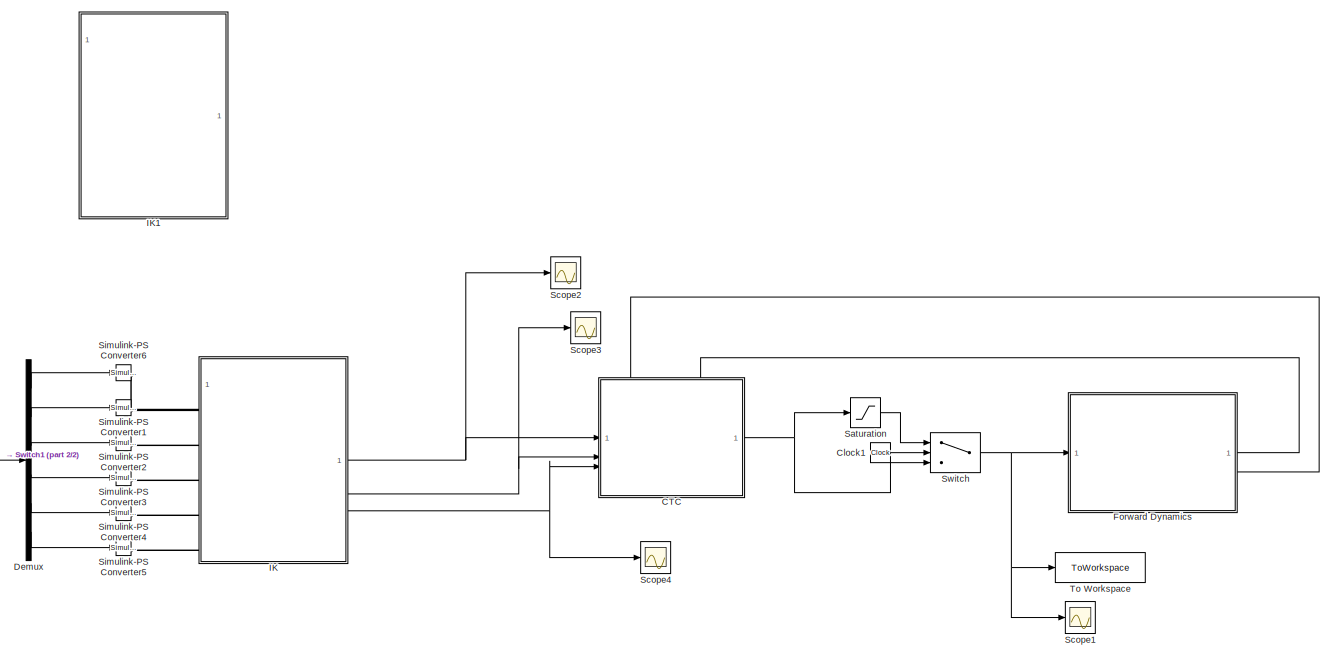
[diagram: root canvas - part 1/2, right side, full height]
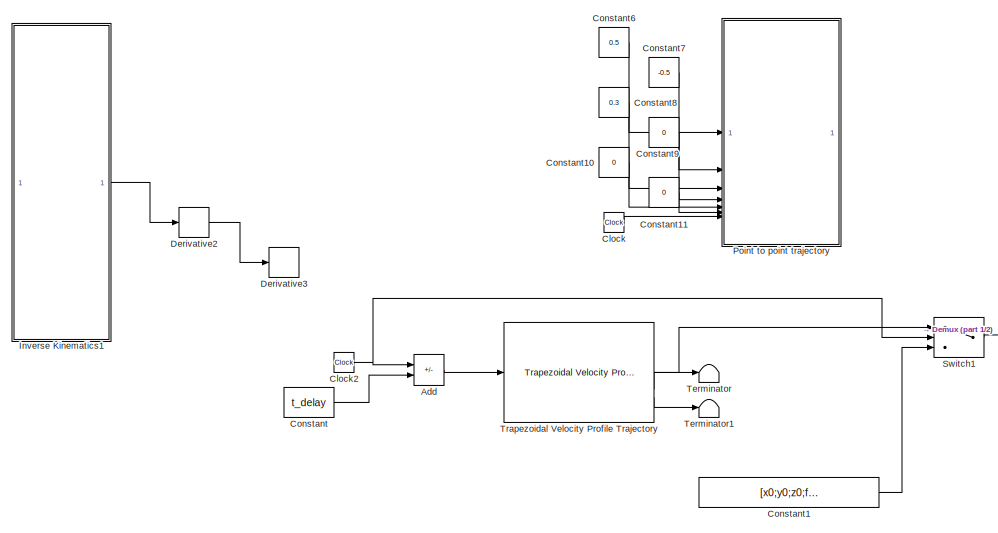
[diagram: root canvas - part 2/2, left side, full height]
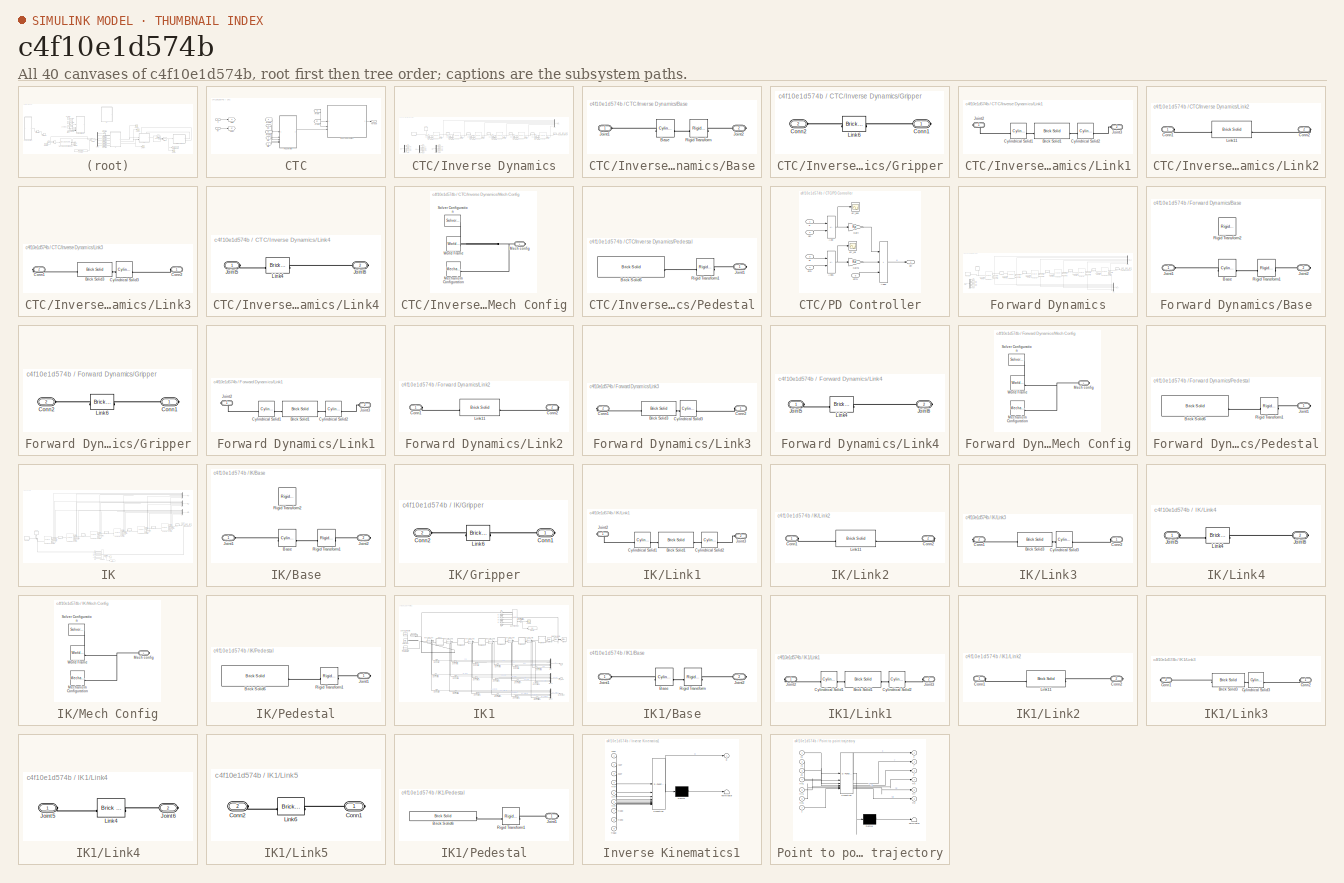
[diagram: thumbnail index - all 40 canvases of the model, root first then tree order]
MODEL slx_c4f10e1d574b
KIND model
CONFIG AbsTol = auto
CONFIG EnableMultiTasking = off
CONFIG FixedStep = 0.01
CONFIG InitFcn = % DOF6_main;\ninitialPosition;
CONFIG MaxStep = auto
CONFIG MinStep = auto
CONFIG RelTol = 1e-3
CONFIG SampleTimeConstraint = Unconstrained
CONFIG SolverName = VariableStepAuto
CONFIG StartTime = 0.0
CONFIG StopTime = tsim+t_delay
BLOCK [Sum] Add
  IconShape = rectangular
  Inputs = +-
BLOCK [SubSystem] CTC
  NameLocation = top
  PortSchema = {"entries":[{"content":{"sides":[{"content":{"connectorIds":["In1","In2","In3"]},"type":"ConnectorPlacement.EquallySpacedRectSide","uuid":"9a488efd-6eea-49b3-abf6-393c8a7d200d"},{"content":{"connectorIds":["Out1"],"side":"RIGHT"},"type":"ConnectorPlacement.EquallySpacedRectSide","uuid":"87642533-9227-4949-963e-4fa5fa7be4dd"},{"content":{"connectorIds":["In4","In5"],"side":"TOP"},"type":"ConnectorP...<+407ch>
BLOCK [From] CTC/From
  GotoTag = q
BLOCK [From] CTC/From1
  GotoTag = qt
BLOCK [From] CTC/From2
  GotoTag = qt
BLOCK [From] CTC/From3
  GotoTag = q
BLOCK [Goto] CTC/Goto
  GotoTag = q
BLOCK [Goto] CTC/Goto1
  GotoTag = qt
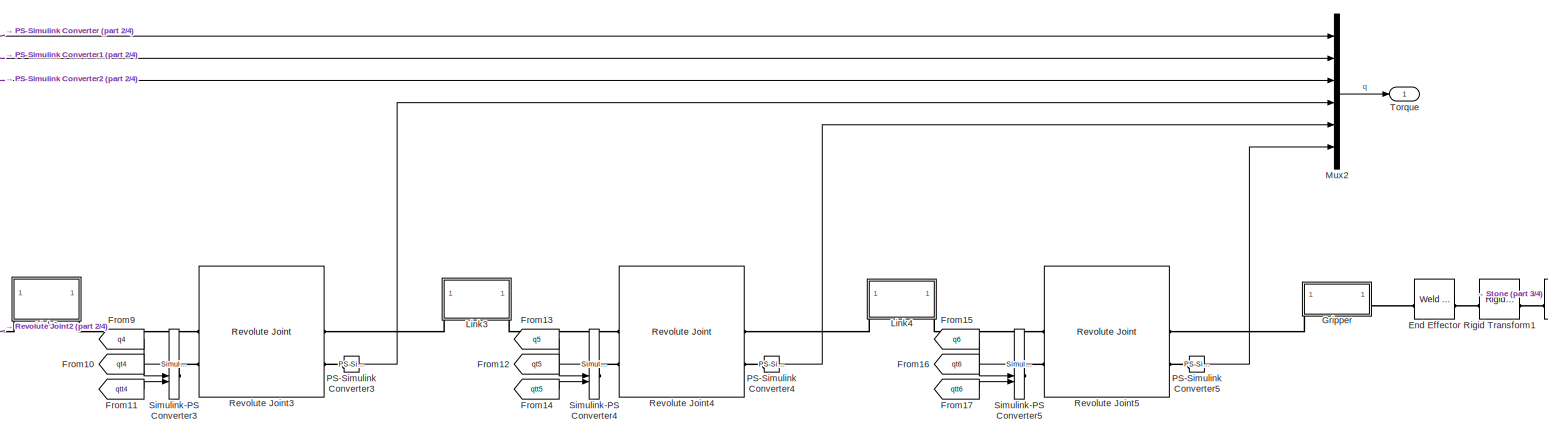
[diagram: CTC/Inverse Dynamics - part 1/4, middle right region]
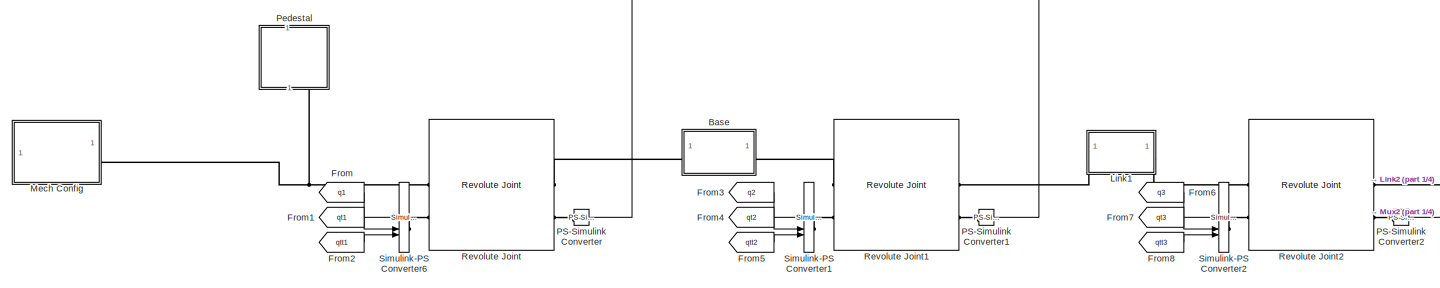
[diagram: CTC/Inverse Dynamics - part 2/4, middle left region]
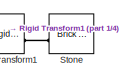
[diagram: CTC/Inverse Dynamics - part 3/4, middle right region]
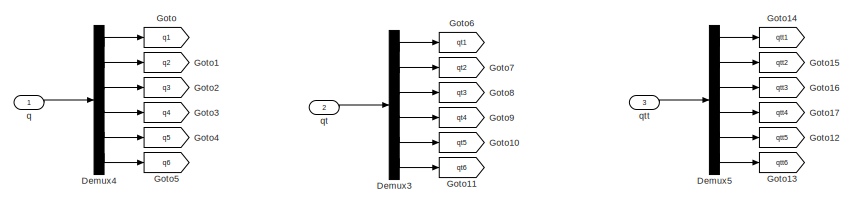
[diagram: CTC/Inverse Dynamics - part 4/4, bottom left region]
BLOCK [SubSystem] CTC/Inverse Dynamics
  NameLocation = top
BLOCK [SubSystem] CTC/Inverse Dynamics/Base
  NameLocation = top
BLOCK [Reference] CTC/Inverse Dynamics/Base/Base  REF=sm_lib/Body Elements/Cylindrical Solid
  NameLocation = top
  SourceBlock = sm_lib/Body Elements/Cylindrical Solid
  SourceType = Cylindrical Solid
BLOCK [PMIOPort] CTC/Inverse Dynamics/Base/Joint1
  Side = Left
BLOCK [PMIOPort] CTC/Inverse Dynamics/Base/Joint2
  Port = 2
  Side = Right
BLOCK [Reference] CTC/Inverse Dynamics/Base/Rigid Transform  REF=sm_lib/Frames and
Transforms/Rigid
Transform
  SourceBlock = sm_lib/Frames and\nTransforms/Rigid\nTransform
  SourceType = Rigid\nTransform
BLOCK [Demux] CTC/Inverse Dynamics/Demux3
  Outputs = 6
BLOCK [Demux] CTC/Inverse Dynamics/Demux4
  Outputs = 6
BLOCK [Demux] CTC/Inverse Dynamics/Demux5
  Outputs = 6
BLOCK [Reference] CTC/Inverse Dynamics/End Effector  REF=sm_lib/Joints/Weld Joint
  NameLocation = top
  SourceBlock = sm_lib/Joints/Weld Joint
  SourceType = Weld Joint
BLOCK [From] CTC/Inverse Dynamics/From
  GotoTag = q1
BLOCK [From] CTC/Inverse Dynamics/From1
  GotoTag = qt1
BLOCK [From] CTC/Inverse Dynamics/From10
  GotoTag = qt4
BLOCK [From] CTC/Inverse Dynamics/From11
  GotoTag = qtt4
BLOCK [From] CTC/Inverse Dynamics/From12
  GotoTag = qt5
BLOCK [From] CTC/Inverse Dynamics/From13
  GotoTag = q5
BLOCK [From] CTC/Inverse Dynamics/From14
  GotoTag = qtt5
BLOCK [From] CTC/Inverse Dynamics/From15
  GotoTag = q6
BLOCK [From] CTC/Inverse Dynamics/From16
  GotoTag = qt6
BLOCK [From] CTC/Inverse Dynamics/From17
  GotoTag = qtt6
BLOCK [From] CTC/Inverse Dynamics/From2
  GotoTag = qtt1
BLOCK [From] CTC/Inverse Dynamics/From3
  GotoTag = q2
BLOCK [From] CTC/Inverse Dynamics/From4
  GotoTag = qt2
BLOCK [From] CTC/Inverse Dynamics/From5
  GotoTag = qtt2
BLOCK [From] CTC/Inverse Dynamics/From6
  GotoTag = q3
BLOCK [From] CTC/Inverse Dynamics/From7
  GotoTag = qt3
BLOCK [From] CTC/Inverse Dynamics/From8
  GotoTag = qtt3
BLOCK [From] CTC/Inverse Dynamics/From9
  GotoTag = q4
BLOCK [Goto] CTC/Inverse Dynamics/Goto
  GotoTag = q1
BLOCK [Goto] CTC/Inverse Dynamics/Goto1
  GotoTag = q2
BLOCK [Goto] CTC/Inverse Dynamics/Goto10
  GotoTag = qt5
BLOCK [Goto] CTC/Inverse Dynamics/Goto11
  GotoTag = qt6
BLOCK [Goto] CTC/Inverse Dynamics/Goto12
  GotoTag = qtt5
BLOCK [Goto] CTC/Inverse Dynamics/Goto13
  GotoTag = qtt6
BLOCK [Goto] CTC/Inverse Dynamics/Goto14
  GotoTag = qtt1
BLOCK [Goto] CTC/Inverse Dynamics/Goto15
  GotoTag = qtt2
BLOCK [Goto] CTC/Inverse Dynamics/Goto16
  GotoTag = qtt3
BLOCK [Goto] CTC/Inverse Dynamics/Goto17
  GotoTag = qtt4
BLOCK [Goto] CTC/Inverse Dynamics/Goto2
  GotoTag = q3
BLOCK [Goto] CTC/Inverse Dynamics/Goto3
  GotoTag = q4
BLOCK [Goto] CTC/Inverse Dynamics/Goto4
  GotoTag = q5
BLOCK [Goto] CTC/Inverse Dynamics/Goto5
  GotoTag = q6
BLOCK [Goto] CTC/Inverse Dynamics/Goto6
  GotoTag = qt1
BLOCK [Goto] CTC/Inverse Dynamics/Goto7
  GotoTag = qt2
BLOCK [Goto] CTC/Inverse Dynamics/Goto8
  GotoTag = qt3
BLOCK [Goto] CTC/Inverse Dynamics/Goto9
  GotoTag = qt4
BLOCK [SubSystem] CTC/Inverse Dynamics/Gripper
  NameLocation = top
BLOCK [PMIOPort] CTC/Inverse Dynamics/Gripper/Conn1
  Side = Right
BLOCK [PMIOPort] CTC/Inverse Dynamics/Gripper/Conn2
  Port = 2
  Side = Left
BLOCK [Reference] CTC/Inverse Dynamics/Gripper/Link6  REF=sm_lib/Body Elements/Brick Solid
  SourceBlock = sm_lib/Body Elements/Brick Solid
  SourceType = Brick Solid
BLOCK [SubSystem] CTC/Inverse Dynamics/Link1
  NameLocation = top
BLOCK [Reference] CTC/Inverse Dynamics/Link1/Brick Solid1  REF=sm_lib/Body Elements/Brick Solid
  SourceBlock = sm_lib/Body Elements/Brick Solid
  SourceType = Brick Solid
BLOCK [Reference] CTC/Inverse Dynamics/Link1/Cylindrical Solid1  REF=sm_lib/Body Elements/Cylindrical Solid
  NameLocation = top
  SourceBlock = sm_lib/Body Elements/Cylindrical Solid
  SourceType = Cylindrical Solid
BLOCK [Reference] CTC/Inverse Dynamics/Link1/Cylindrical Solid2  REF=sm_lib/Body Elements/Cylindrical Solid
  NameLocation = top
  SourceBlock = sm_lib/Body Elements/Cylindrical Solid
  SourceType = Cylindrical Solid
BLOCK [PMIOPort] CTC/Inverse Dynamics/Link1/Joint2
  Side = Right
BLOCK [PMIOPort] CTC/Inverse Dynamics/Link1/Joint3
  Port = 2
  Side = Left
BLOCK [SubSystem] CTC/Inverse Dynamics/Link2
  NameLocation = top
BLOCK [PMIOPort] CTC/Inverse Dynamics/Link2/Conn1
  Side = Left
BLOCK [PMIOPort] CTC/Inverse Dynamics/Link2/Conn2
  Port = 2
  Side = Right
BLOCK [Reference] CTC/Inverse Dynamics/Link2/Link11  REF=sm_lib/Body Elements/Brick Solid
  NameLocation = top
  SourceBlock = sm_lib/Body Elements/Brick Solid
  SourceType = Brick Solid
BLOCK [SubSystem] CTC/Inverse Dynamics/Link3
  NameLocation = top
BLOCK [Reference] CTC/Inverse Dynamics/Link3/Brick Solid3  REF=sm_lib/Body Elements/Brick Solid
  SourceBlock = sm_lib/Body Elements/Brick Solid
  SourceType = Brick Solid
BLOCK [PMIOPort] CTC/Inverse Dynamics/Link3/Conn1
  Port = 2
  Side = Right
BLOCK [PMIOPort] CTC/Inverse Dynamics/Link3/Conn2
  Side = Left
BLOCK [Reference] CTC/Inverse Dynamics/Link3/Cylindrical Solid3  REF=sm_lib/Body Elements/Cylindrical Solid
  NameLocation = top
  SourceBlock = sm_lib/Body Elements/Cylindrical Solid
  SourceType = Cylindrical Solid
BLOCK [SubSystem] CTC/Inverse Dynamics/Link4
BLOCK [PMIOPort] CTC/Inverse Dynamics/Link4/Joint5
  Side = Left
BLOCK [PMIOPort] CTC/Inverse Dynamics/Link4/Joint6
  Port = 2
  Side = Right
BLOCK [Reference] CTC/Inverse Dynamics/Link4/Link4  REF=sm_lib/Body Elements/Brick Solid
  SourceBlock = sm_lib/Body Elements/Brick Solid
  SourceType = Brick Solid
BLOCK [SubSystem] CTC/Inverse Dynamics/Mech Config
BLOCK [PMIOPort] CTC/Inverse Dynamics/Mech Config/Mech config
  Side = Right
BLOCK [Reference] CTC/Inverse Dynamics/Mech Config/Mechanism Configuration  REF=sm_lib/Utilities/Mechanism
Configuration
  SourceBlock = sm_lib/Utilities/Mechanism\nConfiguration
  SourceType = Mechanism\nConfiguration
BLOCK [Reference] CTC/Inverse Dynamics/Mech Config/Solver Configuration  REF=nesl_utility/Solver
Configuration
  SourceBlock = nesl_utility/Solver\nConfiguration
  SourceType = Solver\nConfiguration
BLOCK [Reference] CTC/Inverse Dynamics/Mech Config/World Frame  REF=sm_lib/Frames and
Transforms/World Frame
  SourceBlock = sm_lib/Frames and\nTransforms/World Frame
  SourceType = World Frame
BLOCK [Mux] CTC/Inverse Dynamics/Mux2
  DisplayOption = bar
  Inputs = 6
BLOCK [Reference] CTC/Inverse Dynamics/PS-Simulink Converter  REF=nesl_utility/PS-Simulink
Converter
  SourceBlock = nesl_utility/PS-Simulink\nConverter
  SourceType = PS-Simulink\nConverter
BLOCK [Reference] CTC/Inverse Dynamics/PS-Simulink Converter1  REF=nesl_utility/PS-Simulink
Converter
  SourceBlock = nesl_utility/PS-Simulink\nConverter
  SourceType = PS-Simulink\nConverter
BLOCK [Reference] CTC/Inverse Dynamics/PS-Simulink Converter2  REF=nesl_utility/PS-Simulink
Converter
  SourceBlock = nesl_utility/PS-Simulink\nConverter
  SourceType = PS-Simulink\nConverter
BLOCK [Reference] CTC/Inverse Dynamics/PS-Simulink Converter3  REF=nesl_utility/PS-Simulink
Converter
  SourceBlock = nesl_utility/PS-Simulink\nConverter
  SourceType = PS-Simulink\nConverter
BLOCK [Reference] CTC/Inverse Dynamics/PS-Simulink Converter4  REF=nesl_utility/PS-Simulink
Converter
  SourceBlock = nesl_utility/PS-Simulink\nConverter
  SourceType = PS-Simulink\nConverter
BLOCK [Reference] CTC/Inverse Dynamics/PS-Simulink Converter5  REF=nesl_utility/PS-Simulink
Converter
  SourceBlock = nesl_utility/PS-Simulink\nConverter
  SourceType = PS-Simulink\nConverter
BLOCK [SubSystem] CTC/Inverse Dynamics/Pedestal
  NameLocation = top
BLOCK [Reference] CTC/Inverse Dynamics/Pedestal/Brick Solid6  REF=sm_lib/Body Elements/Brick Solid
  NameLocation = top
  SourceBlock = sm_lib/Body Elements/Brick Solid
  SourceType = Brick Solid
BLOCK [PMIOPort] CTC/Inverse Dynamics/Pedestal/Joint1
  Side = Right
BLOCK [Reference] CTC/Inverse Dynamics/Pedestal/Rigid Transform1  REF=sm_lib/Frames and
Transforms/Rigid
Transform
  SourceBlock = sm_lib/Frames and\nTransforms/Rigid\nTransform
  SourceType = Rigid\nTransform
BLOCK [Reference] CTC/Inverse Dynamics/Revolute Joint  REF=sm_lib/Joints/Revolute Joint
  SourceBlock = sm_lib/Joints/Revolute Joint
  SourceType = Revolute Joint
BLOCK [Reference] CTC/Inverse Dynamics/Revolute Joint1  REF=sm_lib/Joints/Revolute Joint
  SourceBlock = sm_lib/Joints/Revolute Joint
  SourceType = Revolute Joint
BLOCK [Reference] CTC/Inverse Dynamics/Revolute Joint2  REF=sm_lib/Joints/Revolute Joint
  SourceBlock = sm_lib/Joints/Revolute Joint
  SourceType = Revolute Joint
BLOCK [Reference] CTC/Inverse Dynamics/Revolute Joint3  REF=sm_lib/Joints/Revolute Joint
  SourceBlock = sm_lib/Joints/Revolute Joint
  SourceType = Revolute Joint
BLOCK [Reference] CTC/Inverse Dynamics/Revolute Joint4  REF=sm_lib/Joints/Revolute Joint
  SourceBlock = sm_lib/Joints/Revolute Joint
  SourceType = Revolute Joint
BLOCK [Reference] CTC/Inverse Dynamics/Revolute Joint5  REF=sm_lib/Joints/Revolute Joint
  SourceBlock = sm_lib/Joints/Revolute Joint
  SourceType = Revolute Joint
BLOCK [Reference] CTC/Inverse Dynamics/Rigid Transform1  REF=sm_lib/Frames and
Transforms/Rigid
Transform
  SourceBlock = sm_lib/Frames and\nTransforms/Rigid\nTransform
  SourceType = Rigid\nTransform
BLOCK [Reference] CTC/Inverse Dynamics/Simulink-PS Converter1  REF=nesl_utility/Simulink-PS
Converter
  SourceBlock = nesl_utility/Simulink-PS\nConverter
  SourceType = Simulink-PS\nConverter
BLOCK [Reference] CTC/Inverse Dynamics/Simulink-PS Converter2  REF=nesl_utility/Simulink-PS
Converter
  SourceBlock = nesl_utility/Simulink-PS\nConverter
  SourceType = Simulink-PS\nConverter
BLOCK [Reference] CTC/Inverse Dynamics/Simulink-PS Converter3  REF=nesl_utility/Simulink-PS
Converter
  SourceBlock = nesl_utility/Simulink-PS\nConverter
  SourceType = Simulink-PS\nConverter
BLOCK [Reference] CTC/Inverse Dynamics/Simulink-PS Converter4  REF=nesl_utility/Simulink-PS
Converter
  SourceBlock = nesl_utility/Simulink-PS\nConverter
  SourceType = Simulink-PS\nConverter
BLOCK [Reference] CTC/Inverse Dynamics/Simulink-PS Converter5  REF=nesl_utility/Simulink-PS
Converter
  SourceBlock = nesl_utility/Simulink-PS\nConverter
  SourceType = Simulink-PS\nConverter
BLOCK [Reference] CTC/Inverse Dynamics/Simulink-PS Converter6  REF=nesl_utility/Simulink-PS
Converter
  SourceBlock = nesl_utility/Simulink-PS\nConverter
  SourceType = Simulink-PS\nConverter
BLOCK [Reference] CTC/Inverse Dynamics/Stone  REF=sm_lib/Body Elements/Brick Solid
  NameLocation = top
  SourceBlock = sm_lib/Body Elements/Brick Solid
  SourceType = Brick Solid
BLOCK [Outport] CTC/Inverse Dynamics/Torque
BLOCK [Inport] CTC/Inverse Dynamics/q
BLOCK [Inport] CTC/Inverse Dynamics/qt
  Port = 2
BLOCK [Inport] CTC/Inverse Dynamics/qtt
  Port = 3
BLOCK [SubSystem] CTC/PD Controller
BLOCK [Sum] CTC/PD Controller/Add
  IconShape = rectangular
  Inputs = -+
BLOCK [Sum] CTC/PD Controller/Add1
  IconShape = rectangular
  Inputs = -+
BLOCK [Sum] CTC/PD Controller/Add2
  IconShape = rectangular
  Inputs = +++
BLOCK [Gain] CTC/PD Controller/Gain
  Gain = Kp
  Multiplication = Matrix(K*u)
BLOCK [Gain] CTC/PD Controller/Gain1
  Gain = Kd
  Multiplication = Matrix(K*u)
BLOCK [Scope] CTC/PD Controller/err_pos
  Floating = off
  NumInputPorts = 1
  ScopeSpecificationString = Simulink.scopes.TimeScopeBlockCfg('CurrentConfiguration', extmgr.ConfigurationSet(extmgr.Configuration('Core','General UI',true),extmgr.Configuration('Core','Source UI',true),extmgr.Configuration('Sources','WiredSimulink',true,'DataLoggingVariableName','ScopeData1'),extmgr.Configuration('Visuals','Time Domain',true,'SerializedDisplays',{struct('MinYLimReal','-0.45333','MaxYLimReal','0.44534','YLab...<+1473ch>
BLOCK [Scope] CTC/PD Controller/err_vel
  Floating = off
  NumInputPorts = 1
  ScopeSpecificationString = Simulink.scopes.TimeScopeBlockCfg('CurrentConfiguration', extmgr.ConfigurationSet(extmgr.Configuration('Core','General UI',true),extmgr.Configuration('Core','Source UI',true),extmgr.Configuration('Sources','WiredSimulink',true,'DataLoggingVariableName','ScopeData2'),extmgr.Configuration('Visuals','Time Domain',true,'SerializedDisplays',{struct('MinYLimReal','-4.1763','MaxYLimReal','4.1763','YLabel...<+1404ch>
BLOCK [Inport] CTC/PD Controller/q
BLOCK [Inport] CTC/PD Controller/qD
  Port = 2
BLOCK [Inport] CTC/PD Controller/qt
  Port = 3
BLOCK [Inport] CTC/PD Controller/qtD
  Port = 4
BLOCK [Outport] CTC/PD Controller/qtt
BLOCK [Inport] CTC/PD Controller/qttD
  Port = 5
BLOCK [Outport] CTC/Torque
BLOCK [Inport] CTC/q
  Port = 5
BLOCK [Inport] CTC/qD
BLOCK [Inport] CTC/qt
  Port = 4
BLOCK [Inport] CTC/qtD
  Port = 2
BLOCK [Inport] CTC/qttD
  Port = 3
BLOCK [Clock] Clock
  Commented = on
BLOCK [Clock] Clock1
BLOCK [Clock] Clock2
BLOCK [Constant] Constant
  Value = t_delay
BLOCK [Constant] Constant1
  Value = [x0;y0;z0;fix0;fiy0;fiz0]
BLOCK [Constant] Constant10
  Commented = on
  Value = 0
BLOCK [Constant] Constant11
  Commented = on
  Value = 0
BLOCK [Constant] Constant6
  Commented = on
  Value = 0.5
BLOCK [Constant] Constant7
  Commented = on
  Value = -0.5
BLOCK [Constant] Constant8
  Commented = on
  Value = 0.3
BLOCK [Constant] Constant9
  Commented = on
  Value = 0
BLOCK [Demux] Demux
  Outputs = 6
BLOCK [Derivative] Derivative2
  Commented = on
BLOCK [Derivative] Derivative3
  Commented = on
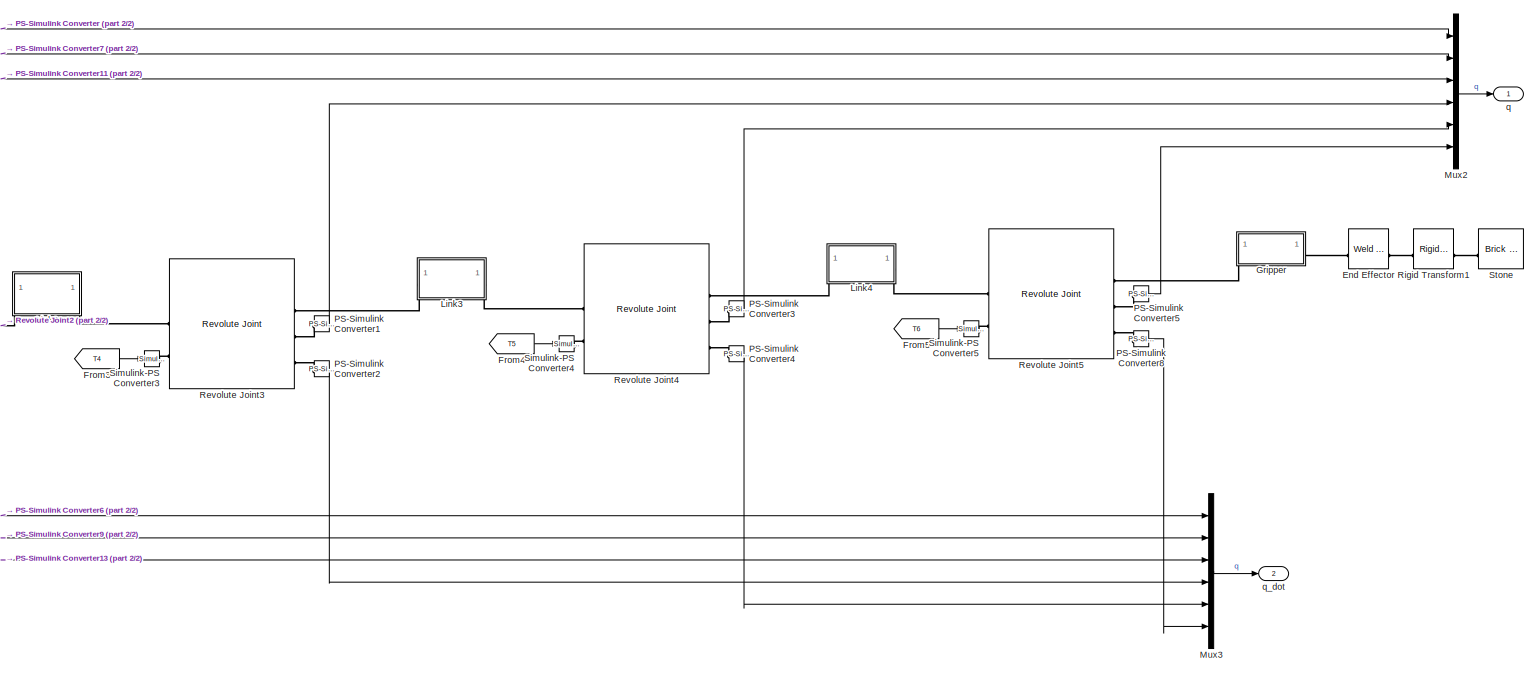
[diagram: Forward Dynamics - part 1/2, right side, full height]
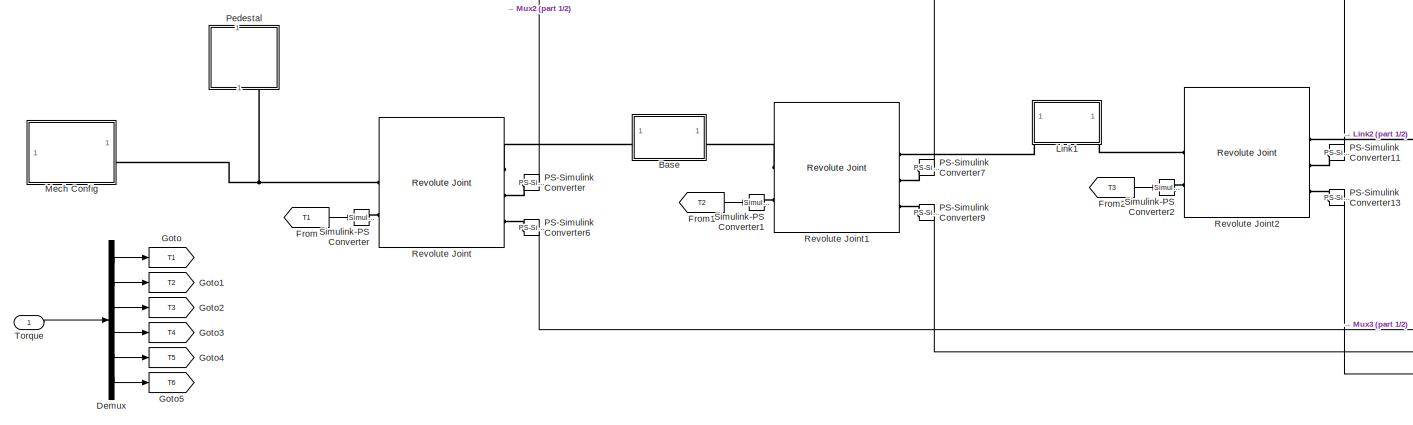
[diagram: Forward Dynamics - part 2/2, middle left region]
BLOCK [SubSystem] Forward Dynamics
  NameLocation = top
BLOCK [SubSystem] Forward Dynamics/Base
  NameLocation = top
BLOCK [Reference] Forward Dynamics/Base/Base  REF=sm_lib/Body Elements/Cylindrical Solid
  NameLocation = top
  SourceBlock = sm_lib/Body Elements/Cylindrical Solid
  SourceType = Cylindrical Solid
BLOCK [PMIOPort] Forward Dynamics/Base/Joint1
  Side = Left
BLOCK [PMIOPort] Forward Dynamics/Base/Joint2
  Port = 2
  Side = Right
BLOCK [Reference] Forward Dynamics/Base/Rigid Transform1  REF=sm_lib/Frames and
Transforms/Rigid
Transform
  SourceBlock = sm_lib/Frames and\nTransforms/Rigid\nTransform
  SourceType = Rigid\nTransform
BLOCK [Reference] Forward Dynamics/Base/Rigid Transform2  REF=sm_lib/Frames and
Transforms/Rigid
Transform
  Commented = on
  SourceBlock = sm_lib/Frames and\nTransforms/Rigid\nTransform
  SourceType = Rigid\nTransform
BLOCK [Demux] Forward Dynamics/Demux
  Outputs = 6
BLOCK [Reference] Forward Dynamics/End Effector  REF=sm_lib/Joints/Weld Joint
  NameLocation = top
  SourceBlock = sm_lib/Joints/Weld Joint
  SourceType = Weld Joint
BLOCK [From] Forward Dynamics/From
  GotoTag = T1
BLOCK [From] Forward Dynamics/From1
  GotoTag = T2
BLOCK [From] Forward Dynamics/From2
  GotoTag = T3
BLOCK [From] Forward Dynamics/From3
  GotoTag = T4
BLOCK [From] Forward Dynamics/From4
  GotoTag = T5
BLOCK [From] Forward Dynamics/From5
  GotoTag = T6
BLOCK [Goto] Forward Dynamics/Goto
  GotoTag = T1
BLOCK [Goto] Forward Dynamics/Goto1
  GotoTag = T2
BLOCK [Goto] Forward Dynamics/Goto2
  GotoTag = T3
BLOCK [Goto] Forward Dynamics/Goto3
  GotoTag = T4
BLOCK [Goto] Forward Dynamics/Goto4
  GotoTag = T5
BLOCK [Goto] Forward Dynamics/Goto5
  GotoTag = T6
BLOCK [SubSystem] Forward Dynamics/Gripper
  NameLocation = top
BLOCK [PMIOPort] Forward Dynamics/Gripper/Conn1
  Side = Right
BLOCK [PMIOPort] Forward Dynamics/Gripper/Conn2
  Port = 2
  Side = Left
BLOCK [Reference] Forward Dynamics/Gripper/Link6  REF=sm_lib/Body Elements/Brick Solid
  SourceBlock = sm_lib/Body Elements/Brick Solid
  SourceType = Brick Solid
BLOCK [SubSystem] Forward Dynamics/Link1
  NameLocation = top
BLOCK [Reference] Forward Dynamics/Link1/Brick Solid1  REF=sm_lib/Body Elements/Brick Solid
  SourceBlock = sm_lib/Body Elements/Brick Solid
  SourceType = Brick Solid
BLOCK [Reference] Forward Dynamics/Link1/Cylindrical Solid1  REF=sm_lib/Body Elements/Cylindrical Solid
  NameLocation = top
  SourceBlock = sm_lib/Body Elements/Cylindrical Solid
  SourceType = Cylindrical Solid
BLOCK [Reference] Forward Dynamics/Link1/Cylindrical Solid2  REF=sm_lib/Body Elements/Cylindrical Solid
  NameLocation = top
  SourceBlock = sm_lib/Body Elements/Cylindrical Solid
  SourceType = Cylindrical Solid
BLOCK [PMIOPort] Forward Dynamics/Link1/Joint2
  Side = Right
BLOCK [PMIOPort] Forward Dynamics/Link1/Joint3
  Port = 2
  Side = Left
BLOCK [SubSystem] Forward Dynamics/Link2
  NameLocation = top
BLOCK [PMIOPort] Forward Dynamics/Link2/Conn1
  Side = Left
BLOCK [PMIOPort] Forward Dynamics/Link2/Conn2
  Port = 2
  Side = Right
BLOCK [Reference] Forward Dynamics/Link2/Link11  REF=sm_lib/Body Elements/Brick Solid
  NameLocation = top
  SourceBlock = sm_lib/Body Elements/Brick Solid
  SourceType = Brick Solid
BLOCK [SubSystem] Forward Dynamics/Link3
  NameLocation = top
BLOCK [Reference] Forward Dynamics/Link3/Brick Solid3  REF=sm_lib/Body Elements/Brick Solid
  SourceBlock = sm_lib/Body Elements/Brick Solid
  SourceType = Brick Solid
BLOCK [PMIOPort] Forward Dynamics/Link3/Conn1
  Port = 2
  Side = Right
BLOCK [PMIOPort] Forward Dynamics/Link3/Conn2
  Side = Left
BLOCK [Reference] Forward Dynamics/Link3/Cylindrical Solid3  REF=sm_lib/Body Elements/Cylindrical Solid
  NameLocation = top
  SourceBlock = sm_lib/Body Elements/Cylindrical Solid
  SourceType = Cylindrical Solid
BLOCK [SubSystem] Forward Dynamics/Link4
BLOCK [PMIOPort] Forward Dynamics/Link4/Joint5
  Side = Left
BLOCK [PMIOPort] Forward Dynamics/Link4/Joint6
  Port = 2
  Side = Right
BLOCK [Reference] Forward Dynamics/Link4/Link4  REF=sm_lib/Body Elements/Brick Solid
  SourceBlock = sm_lib/Body Elements/Brick Solid
  SourceType = Brick Solid
BLOCK [SubSystem] Forward Dynamics/Mech Config
BLOCK [PMIOPort] Forward Dynamics/Mech Config/Mech config
  Side = Right
BLOCK [Reference] Forward Dynamics/Mech Config/Mechanism Configuration  REF=sm_lib/Utilities/Mechanism
Configuration
  SourceBlock = sm_lib/Utilities/Mechanism\nConfiguration
  SourceType = Mechanism\nConfiguration
BLOCK [Reference] Forward Dynamics/Mech Config/Solver Configuration  REF=nesl_utility/Solver
Configuration
  SourceBlock = nesl_utility/Solver\nConfiguration
  SourceType = Solver\nConfiguration
BLOCK [Reference] Forward Dynamics/Mech Config/World Frame  REF=sm_lib/Frames and
Transforms/World Frame
  SourceBlock = sm_lib/Frames and\nTransforms/World Frame
  SourceType = World Frame
BLOCK [Mux] Forward Dynamics/Mux2
  DisplayOption = bar
  Inputs = 6
BLOCK [Mux] Forward Dynamics/Mux3
  DisplayOption = bar
  Inputs = 6
BLOCK [Reference] Forward Dynamics/PS-Simulink Converter  REF=nesl_utility/PS-Simulink
Converter
  SourceBlock = nesl_utility/PS-Simulink\nConverter
  SourceType = PS-Simulink\nConverter
BLOCK [Reference] Forward Dynamics/PS-Simulink Converter1  REF=nesl_utility/PS-Simulink
Converter
  SourceBlock = nesl_utility/PS-Simulink\nConverter
  SourceType = PS-Simulink\nConverter
BLOCK [Reference] Forward Dynamics/PS-Simulink Converter11  REF=nesl_utility/PS-Simulink
Converter
  SourceBlock = nesl_utility/PS-Simulink\nConverter
  SourceType = PS-Simulink\nConverter
BLOCK [Reference] Forward Dynamics/PS-Simulink Converter13  REF=nesl_utility/PS-Simulink
Converter
  SourceBlock = nesl_utility/PS-Simulink\nConverter
  SourceType = PS-Simulink\nConverter
BLOCK [Reference] Forward Dynamics/PS-Simulink Converter2  REF=nesl_utility/PS-Simulink
Converter
  SourceBlock = nesl_utility/PS-Simulink\nConverter
  SourceType = PS-Simulink\nConverter
BLOCK [Reference] Forward Dynamics/PS-Simulink Converter3  REF=nesl_utility/PS-Simulink
Converter
  SourceBlock = nesl_utility/PS-Simulink\nConverter
  SourceType = PS-Simulink\nConverter
BLOCK [Reference] Forward Dynamics/PS-Simulink Converter4  REF=nesl_utility/PS-Simulink
Converter
  SourceBlock = nesl_utility/PS-Simulink\nConverter
  SourceType = PS-Simulink\nConverter
BLOCK [Reference] Forward Dynamics/PS-Simulink Converter5  REF=nesl_utility/PS-Simulink
Converter
  SourceBlock = nesl_utility/PS-Simulink\nConverter
  SourceType = PS-Simulink\nConverter
BLOCK [Reference] Forward Dynamics/PS-Simulink Converter6  REF=nesl_utility/PS-Simulink
Converter
  SourceBlock = nesl_utility/PS-Simulink\nConverter
  SourceType = PS-Simulink\nConverter
BLOCK [Reference] Forward Dynamics/PS-Simulink Converter7  REF=nesl_utility/PS-Simulink
Converter
  SourceBlock = nesl_utility/PS-Simulink\nConverter
  SourceType = PS-Simulink\nConverter
BLOCK [Reference] Forward Dynamics/PS-Simulink Converter8  REF=nesl_utility/PS-Simulink
Converter
  SourceBlock = nesl_utility/PS-Simulink\nConverter
  SourceType = PS-Simulink\nConverter
BLOCK [Reference] Forward Dynamics/PS-Simulink Converter9  REF=nesl_utility/PS-Simulink
Converter
  SourceBlock = nesl_utility/PS-Simulink\nConverter
  SourceType = PS-Simulink\nConverter
BLOCK [SubSystem] Forward Dynamics/Pedestal
  NameLocation = top
BLOCK [Reference] Forward Dynamics/Pedestal/Brick Solid6  REF=sm_lib/Body Elements/Brick Solid
  NameLocation = top
  SourceBlock = sm_lib/Body Elements/Brick Solid
  SourceType = Brick Solid
BLOCK [PMIOPort] Forward Dynamics/Pedestal/Joint1
  Side = Right
BLOCK [Reference] Forward Dynamics/Pedestal/Rigid Transform1  REF=sm_lib/Frames and
Transforms/Rigid
Transform
  SourceBlock = sm_lib/Frames and\nTransforms/Rigid\nTransform
  SourceType = Rigid\nTransform
BLOCK [Reference] Forward Dynamics/Revolute Joint  REF=sm_lib/Joints/Revolute Joint
  SourceBlock = sm_lib/Joints/Revolute Joint
  SourceType = Revolute Joint
BLOCK [Reference] Forward Dynamics/Revolute Joint1  REF=sm_lib/Joints/Revolute Joint
  SourceBlock = sm_lib/Joints/Revolute Joint
  SourceType = Revolute Joint
BLOCK [Reference] Forward Dynamics/Revolute Joint2  REF=sm_lib/Joints/Revolute Joint
  SourceBlock = sm_lib/Joints/Revolute Joint
  SourceType = Revolute Joint
BLOCK [Reference] Forward Dynamics/Revolute Joint3  REF=sm_lib/Joints/Revolute Joint
  SourceBlock = sm_lib/Joints/Revolute Joint
  SourceType = Revolute Joint
BLOCK [Reference] Forward Dynamics/Revolute Joint4  REF=sm_lib/Joints/Revolute Joint
  SourceBlock = sm_lib/Joints/Revolute Joint
  SourceType = Revolute Joint
BLOCK [Reference] Forward Dynamics/Revolute Joint5  REF=sm_lib/Joints/Revolute Joint
  SourceBlock = sm_lib/Joints/Revolute Joint
  SourceType = Revolute Joint
BLOCK [Reference] Forward Dynamics/Rigid Transform1  REF=sm_lib/Frames and
Transforms/Rigid
Transform
  SourceBlock = sm_lib/Frames and\nTransforms/Rigid\nTransform
  SourceType = Rigid\nTransform
BLOCK [Reference] Forward Dynamics/Simulink-PS Converter  REF=nesl_utility/Simulink-PS
Converter
  SourceBlock = nesl_utility/Simulink-PS\nConverter
  SourceType = Simulink-PS\nConverter
BLOCK [Reference] Forward Dynamics/Simulink-PS Converter1  REF=nesl_utility/Simulink-PS
Converter
  SourceBlock = nesl_utility/Simulink-PS\nConverter
  SourceType = Simulink-PS\nConverter
BLOCK [Reference] Forward Dynamics/Simulink-PS Converter2  REF=nesl_utility/Simulink-PS
Converter
  SourceBlock = nesl_utility/Simulink-PS\nConverter
  SourceType = Simulink-PS\nConverter
BLOCK [Reference] Forward Dynamics/Simulink-PS Converter3  REF=nesl_utility/Simulink-PS
Converter
  SourceBlock = nesl_utility/Simulink-PS\nConverter
  SourceType = Simulink-PS\nConverter
BLOCK [Reference] Forward Dynamics/Simulink-PS Converter4  REF=nesl_utility/Simulink-PS
Converter
  SourceBlock = nesl_utility/Simulink-PS\nConverter
  SourceType = Simulink-PS\nConverter
BLOCK [Reference] Forward Dynamics/Simulink-PS Converter5  REF=nesl_utility/Simulink-PS
Converter
  SourceBlock = nesl_utility/Simulink-PS\nConverter
  SourceType = Simulink-PS\nConverter
BLOCK [Reference] Forward Dynamics/Stone  REF=sm_lib/Body Elements/Brick Solid
  NameLocation = top
  SourceBlock = sm_lib/Body Elements/Brick Solid
  SourceType = Brick Solid
BLOCK [Inport] Forward Dynamics/Torque
BLOCK [Outport] Forward Dynamics/q
BLOCK [Outport] Forward Dynamics/q_dot
  Port = 2
BLOCK [SubSystem] IK
  NameLocation = top
BLOCK [SubSystem] IK/Base
  NameLocation = top
BLOCK [Reference] IK/Base/Base  REF=sm_lib/Body Elements/Cylindrical Solid
  NameLocation = top
  SourceBlock = sm_lib/Body Elements/Cylindrical Solid
  SourceType = Cylindrical Solid
BLOCK [PMIOPort] IK/Base/Joint1
  Side = Left
BLOCK [PMIOPort] IK/Base/Joint2
  Port = 2
  Side = Right
BLOCK [Reference] IK/Base/Rigid Transform1  REF=sm_lib/Frames and
Transforms/Rigid
Transform
  SourceBlock = sm_lib/Frames and\nTransforms/Rigid\nTransform
  SourceType = Rigid\nTransform
BLOCK [Reference] IK/Base/Rigid Transform2  REF=sm_lib/Frames and
Transforms/Rigid
Transform
  Commented = on
  SourceBlock = sm_lib/Frames and\nTransforms/Rigid\nTransform
  SourceType = Rigid\nTransform
BLOCK [Reference] IK/Bushing Joint  REF=sm_lib/Joints/Bushing Joint
  SourceBlock = sm_lib/Joints/Bushing Joint
  SourceType = Bushing Joint
BLOCK [Display] IK/Display
  Decimation = 1
BLOCK [Reference] IK/End Effector  REF=sm_lib/Joints/Weld Joint
  NameLocation = top
  SourceBlock = sm_lib/Joints/Weld Joint
  SourceType = Weld Joint
BLOCK [SubSystem] IK/Gripper
  NameLocation = top
BLOCK [PMIOPort] IK/Gripper/Conn1
  Side = Right
BLOCK [PMIOPort] IK/Gripper/Conn2
  Port = 2
  Side = Left
BLOCK [Reference] IK/Gripper/Link6  REF=sm_lib/Body Elements/Brick Solid
  SourceBlock = sm_lib/Body Elements/Brick Solid
  SourceType = Brick Solid
BLOCK [SubSystem] IK/Link1
  NameLocation = top
BLOCK [Reference] IK/Link1/Brick Solid1  REF=sm_lib/Body Elements/Brick Solid
  SourceBlock = sm_lib/Body Elements/Brick Solid
  SourceType = Brick Solid
BLOCK [Reference] IK/Link1/Cylindrical Solid1  REF=sm_lib/Body Elements/Cylindrical Solid
  NameLocation = top
  SourceBlock = sm_lib/Body Elements/Cylindrical Solid
  SourceType = Cylindrical Solid
BLOCK [Reference] IK/Link1/Cylindrical Solid2  REF=sm_lib/Body Elements/Cylindrical Solid
  NameLocation = top
  SourceBlock = sm_lib/Body Elements/Cylindrical Solid
  SourceType = Cylindrical Solid
BLOCK [PMIOPort] IK/Link1/Joint2
  Side = Right
BLOCK [PMIOPort] IK/Link1/Joint3
  Port = 2
  Side = Left
BLOCK [SubSystem] IK/Link2
  NameLocation = top
BLOCK [PMIOPort] IK/Link2/Conn1
  Side = Left
BLOCK [PMIOPort] IK/Link2/Conn2
  Port = 2
  Side = Right
BLOCK [Reference] IK/Link2/Link11  REF=sm_lib/Body Elements/Brick Solid
  NameLocation = top
  SourceBlock = sm_lib/Body Elements/Brick Solid
  SourceType = Brick Solid
BLOCK [SubSystem] IK/Link3
  NameLocation = top
BLOCK [Reference] IK/Link3/Brick Solid3  REF=sm_lib/Body Elements/Brick Solid
  SourceBlock = sm_lib/Body Elements/Brick Solid
  SourceType = Brick Solid
BLOCK [PMIOPort] IK/Link3/Conn1
  Port = 2
  Side = Right
BLOCK [PMIOPort] IK/Link3/Conn2
  Side = Left
BLOCK [Reference] IK/Link3/Cylindrical Solid3  REF=sm_lib/Body Elements/Cylindrical Solid
  NameLocation = top
  SourceBlock = sm_lib/Body Elements/Cylindrical Solid
  SourceType = Cylindrical Solid
BLOCK [SubSystem] IK/Link4
BLOCK [PMIOPort] IK/Link4/Joint5
  Side = Left
BLOCK [PMIOPort] IK/Link4/Joint6
  Port = 2
  Side = Right
BLOCK [Reference] IK/Link4/Link4  REF=sm_lib/Body Elements/Brick Solid
  SourceBlock = sm_lib/Body Elements/Brick Solid
  SourceType = Brick Solid
BLOCK [SubSystem] IK/Mech Config
BLOCK [PMIOPort] IK/Mech Config/Mech config
  Side = Right
BLOCK [Reference] IK/Mech Config/Mechanism Configuration  REF=sm_lib/Utilities/Mechanism
Configuration
  SourceBlock = sm_lib/Utilities/Mechanism\nConfiguration
  SourceType = Mechanism\nConfiguration
BLOCK [Reference] IK/Mech Config/Solver Configuration  REF=nesl_utility/Solver
Configuration
  SourceBlock = nesl_utility/Solver\nConfiguration
  SourceType = Solver\nConfiguration
BLOCK [Reference] IK/Mech Config/World Frame  REF=sm_lib/Frames and
Transforms/World Frame
  SourceBlock = sm_lib/Frames and\nTransforms/World Frame
  SourceType = World Frame
BLOCK [Mux] IK/Mux
  DisplayOption = bar
  Inputs = 6
BLOCK [Mux] IK/Mux1
  DisplayOption = bar
  Inputs = 6
BLOCK [Mux] IK/Mux2
  DisplayOption = bar
  Inputs = 6
BLOCK [Reference] IK/PS-Simulink Converter18  REF=nesl_utility/PS-Simulink
Converter
  SourceBlock = nesl_utility/PS-Simulink\nConverter
  SourceType = PS-Simulink\nConverter
BLOCK [Reference] IK/PS-Simulink Converter19  REF=nesl_utility/PS-Simulink
Converter
  SourceBlock = nesl_utility/PS-Simulink\nConverter
  SourceType = PS-Simulink\nConverter
BLOCK [Reference] IK/PS-Simulink Converter20  REF=nesl_utility/PS-Simulink
Converter
  SourceBlock = nesl_utility/PS-Simulink\nConverter
  SourceType = PS-Simulink\nConverter
BLOCK [Reference] IK/PS-Simulink Converter21  REF=nesl_utility/PS-Simulink
Converter
  SourceBlock = nesl_utility/PS-Simulink\nConverter
  SourceType = PS-Simulink\nConverter
BLOCK [Reference] IK/PS-Simulink Converter22  REF=nesl_utility/PS-Simulink
Converter
  SourceBlock = nesl_utility/PS-Simulink\nConverter
  SourceType = PS-Simulink\nConverter
BLOCK [Reference] IK/PS-Simulink Converter23  REF=nesl_utility/PS-Simulink
Converter
  SourceBlock = nesl_utility/PS-Simulink\nConverter
  SourceType = PS-Simulink\nConverter
BLOCK [Reference] IK/PS-Simulink Converter24  REF=nesl_utility/PS-Simulink
Converter
  SourceBlock = nesl_utility/PS-Simulink\nConverter
  SourceType = PS-Simulink\nConverter
BLOCK [Reference] IK/PS-Simulink Converter25  REF=nesl_utility/PS-Simulink
Converter
  SourceBlock = nesl_utility/PS-Simulink\nConverter
  SourceType = PS-Simulink\nConverter
BLOCK [Reference] IK/PS-Simulink Converter26  REF=nesl_utility/PS-Simulink
Converter
  SourceBlock = nesl_utility/PS-Simulink\nConverter
  SourceType = PS-Simulink\nConverter
BLOCK [Reference] IK/PS-Simulink Converter27  REF=nesl_utility/PS-Simulink
Converter
  SourceBlock = nesl_utility/PS-Simulink\nConverter
  SourceType = PS-Simulink\nConverter
BLOCK [Reference] IK/PS-Simulink Converter28  REF=nesl_utility/PS-Simulink
Converter
  SourceBlock = nesl_utility/PS-Simulink\nConverter
  SourceType = PS-Simulink\nConverter
BLOCK [Reference] IK/PS-Simulink Converter29  REF=nesl_utility/PS-Simulink
Converter
  SourceBlock = nesl_utility/PS-Simulink\nConverter
  SourceType = PS-Simulink\nConverter
BLOCK [Reference] IK/PS-Simulink Converter30  REF=nesl_utility/PS-Simulink
Converter
  SourceBlock = nesl_utility/PS-Simulink\nConverter
  SourceType = PS-Simulink\nConverter
BLOCK [Reference] IK/PS-Simulink Converter31  REF=nesl_utility/PS-Simulink
Converter
  SourceBlock = nesl_utility/PS-Simulink\nConverter
  SourceType = PS-Simulink\nConverter
BLOCK [Reference] IK/PS-Simulink Converter32  REF=nesl_utility/PS-Simulink
Converter
  SourceBlock = nesl_utility/PS-Simulink\nConverter
  SourceType = PS-Simulink\nConverter
BLOCK [Reference] IK/PS-Simulink Converter33  REF=nesl_utility/PS-Simulink
Converter
  SourceBlock = nesl_utility/PS-Simulink\nConverter
  SourceType = PS-Simulink\nConverter
BLOCK [Reference] IK/PS-Simulink Converter34  REF=nesl_utility/PS-Simulink
Converter
  SourceBlock = nesl_utility/PS-Simulink\nConverter
  SourceType = PS-Simulink\nConverter
BLOCK [Reference] IK/PS-Simulink Converter35  REF=nesl_utility/PS-Simulink
Converter
  SourceBlock = nesl_utility/PS-Simulink\nConverter
  SourceType = PS-Simulink\nConverter
BLOCK [Reference] IK/PS-Simulink Converter36  REF=nesl_utility/PS-Simulink
Converter
  SourceBlock = nesl_utility/PS-Simulink\nConverter
  SourceType = PS-Simulink\nConverter
BLOCK [SubSystem] IK/Pedestal
  NameLocation = top
BLOCK [Reference] IK/Pedestal/Brick Solid6  REF=sm_lib/Body Elements/Brick Solid
  NameLocation = top
  SourceBlock = sm_lib/Body Elements/Brick Solid
  SourceType = Brick Solid
BLOCK [PMIOPort] IK/Pedestal/Joint1
  Side = Right
BLOCK [Reference] IK/Pedestal/Rigid Transform1  REF=sm_lib/Frames and
Transforms/Rigid
Transform
  SourceBlock = sm_lib/Frames and\nTransforms/Rigid\nTransform
  SourceType = Rigid\nTransform
BLOCK [Reference] IK/Revolute Joint  REF=sm_lib/Joints/Revolute Joint
  SourceBlock = sm_lib/Joints/Revolute Joint
  SourceType = Revolute Joint
BLOCK [Reference] IK/Revolute Joint1  REF=sm_lib/Joints/Revolute Joint
  SourceBlock = sm_lib/Joints/Revolute Joint
  SourceType = Revolute Joint
BLOCK [Reference] IK/Revolute Joint2  REF=sm_lib/Joints/Revolute Joint
  SourceBlock = sm_lib/Joints/Revolute Joint
  SourceType = Revolute Joint
BLOCK [Reference] IK/Revolute Joint3  REF=sm_lib/Joints/Revolute Joint
  SourceBlock = sm_lib/Joints/Revolute Joint
  SourceType = Revolute Joint
BLOCK [Reference] IK/Revolute Joint4  REF=sm_lib/Joints/Revolute Joint
  SourceBlock = sm_lib/Joints/Revolute Joint
  SourceType = Revolute Joint
BLOCK [Reference] IK/Revolute Joint5  REF=sm_lib/Joints/Revolute Joint
  SourceBlock = sm_lib/Joints/Revolute Joint
  SourceType = Revolute Joint
BLOCK [Reference] IK/Rigid Transform1  REF=sm_lib/Frames and
Transforms/Rigid
Transform
  SourceBlock = sm_lib/Frames and\nTransforms/Rigid\nTransform
  SourceType = Rigid\nTransform
BLOCK [Scope] IK/Scope
  Floating = off
  NumInputPorts = 1
  ScopeSpecificationString = Simulink.scopes.TimeScopeBlockCfg('CurrentConfiguration', extmgr.ConfigurationSet(extmgr.Configuration('Core','General UI',true),extmgr.Configuration('Core','Source UI',true),extmgr.Configuration('Sources','WiredSimulink',true),extmgr.Configuration('Visuals','Time Domain',true,'SerializedDisplays',{struct('MinYLimReal','-0.53698','MaxYLimReal','0.6142','YLabelReal','','MinYLimMag','0.00000','MaxYL...<+1512ch>
BLOCK [Reference] IK/Stone  REF=sm_lib/Body Elements/Brick Solid
  NameLocation = top
  SourceBlock = sm_lib/Body Elements/Brick Solid
  SourceType = Brick Solid
BLOCK [PMIOPort] IK/px
  NameLocation = left
  Side = Left
BLOCK [PMIOPort] IK/py
  NameLocation = left
  Port = 2
  Side = Left
BLOCK [PMIOPort] IK/pz
  NameLocation = left
  Port = 3
  Side = Left
BLOCK [Outport] IK/qD
BLOCK [Outport] IK/qtD
  Port = 2
BLOCK [Outport] IK/qttD
  Port = 3
BLOCK [PMIOPort] IK/qx
  NameLocation = left
  Port = 4
  Side = Left
BLOCK [PMIOPort] IK/qy
  NameLocation = left
  Port = 5
  Side = Left
BLOCK [PMIOPort] IK/qz
  NameLocation = left
  Port = 6
  Side = Left
BLOCK [SubSystem] IK1
  Commented = on
  NameLocation = top
BLOCK [SubSystem] IK1/Base
  NameLocation = top
BLOCK [Reference] IK1/Base/Base  REF=sm_lib/Body Elements/Cylindrical Solid
  NameLocation = top
  SourceBlock = sm_lib/Body Elements/Cylindrical Solid
  SourceType = Cylindrical Solid
BLOCK [PMIOPort] IK1/Base/Joint1
  Side = Left
BLOCK [PMIOPort] IK1/Base/Joint2
  Port = 2
  Side = Right
BLOCK [Reference] IK1/Base/Rigid Transform  REF=sm_lib/Frames and
Transforms/Rigid
Transform
  SourceBlock = sm_lib/Frames and\nTransforms/Rigid\nTransform
  SourceType = Rigid\nTransform
BLOCK [Reference] IK1/Bushing Joint  REF=sm_lib/Joints/Bushing Joint
  SourceBlock = sm_lib/Joints/Bushing Joint
  SourceType = Bushing Joint
BLOCK [Display] IK1/Display
  Decimation = 1
BLOCK [Reference] IK1/End Effector  REF=sm_lib/Joints/Weld Joint
  NameLocation = top
  SourceBlock = sm_lib/Joints/Weld Joint
  SourceType = Weld Joint
BLOCK [SubSystem] IK1/Link1
  NameLocation = top
BLOCK [Reference] IK1/Link1/Brick Solid1  REF=sm_lib/Body Elements/Brick Solid
  SourceBlock = sm_lib/Body Elements/Brick Solid
  SourceType = Brick Solid
BLOCK [Reference] IK1/Link1/Cylindrical Solid1  REF=sm_lib/Body Elements/Cylindrical Solid
  NameLocation = top
  SourceBlock = sm_lib/Body Elements/Cylindrical Solid
  SourceType = Cylindrical Solid
BLOCK [Reference] IK1/Link1/Cylindrical Solid2  REF=sm_lib/Body Elements/Cylindrical Solid
  NameLocation = top
  SourceBlock = sm_lib/Body Elements/Cylindrical Solid
  SourceType = Cylindrical Solid
BLOCK [PMIOPort] IK1/Link1/Joint2
  Side = Right
BLOCK [PMIOPort] IK1/Link1/Joint3
  Port = 2
  Side = Left
BLOCK [SubSystem] IK1/Link2
  NameLocation = top
BLOCK [PMIOPort] IK1/Link2/Conn1
  Side = Left
BLOCK [PMIOPort] IK1/Link2/Conn2
  Port = 2
  Side = Right
BLOCK [Reference] IK1/Link2/Link11  REF=sm_lib/Body Elements/Brick Solid
  NameLocation = top
  SourceBlock = sm_lib/Body Elements/Brick Solid
  SourceType = Brick Solid
BLOCK [SubSystem] IK1/Link3
  NameLocation = top
BLOCK [Reference] IK1/Link3/Brick Solid3  REF=sm_lib/Body Elements/Brick Solid
  SourceBlock = sm_lib/Body Elements/Brick Solid
  SourceType = Brick Solid
BLOCK [PMIOPort] IK1/Link3/Conn1
  Port = 2
  Side = Right
BLOCK [PMIOPort] IK1/Link3/Conn2
  Side = Left
BLOCK [Reference] IK1/Link3/Cylindrical Solid3  REF=sm_lib/Body Elements/Cylindrical Solid
  NameLocation = top
  SourceBlock = sm_lib/Body Elements/Cylindrical Solid
  SourceType = Cylindrical Solid
BLOCK [SubSystem] IK1/Link4
  NameLocation = top
BLOCK [PMIOPort] IK1/Link4/Joint5
  Side = Left
BLOCK [PMIOPort] IK1/Link4/Joint6
  Port = 2
  Side = Right
BLOCK [Reference] IK1/Link4/Link4  REF=sm_lib/Body Elements/Brick Solid
  SourceBlock = sm_lib/Body Elements/Brick Solid
  SourceType = Brick Solid
BLOCK [SubSystem] IK1/Link5
  NameLocation = top
BLOCK [PMIOPort] IK1/Link5/Conn1
  Side = Right
BLOCK [PMIOPort] IK1/Link5/Conn2
  Port = 2
  Side = Left
BLOCK [Reference] IK1/Link5/Link6  REF=sm_lib/Body Elements/Brick Solid
  SourceBlock = sm_lib/Body Elements/Brick Solid
  SourceType = Brick Solid
BLOCK [Reference] IK1/Mechanism Configuration  REF=sm_lib/Utilities/Mechanism
Configuration
  SourceBlock = sm_lib/Utilities/Mechanism\nConfiguration
  SourceType = Mechanism\nConfiguration
BLOCK [Mux] IK1/Mux
  DisplayOption = bar
  Inputs = 6
BLOCK [Mux] IK1/Mux1
  DisplayOption = bar
  Inputs = 6
BLOCK [Mux] IK1/Mux2
  DisplayOption = bar
  Inputs = 6
BLOCK [Reference] IK1/PS-Simulink Converter  REF=nesl_utility/PS-Simulink
Converter
  SourceBlock = nesl_utility/PS-Simulink\nConverter
  SourceType = PS-Simulink\nConverter
BLOCK [Reference] IK1/PS-Simulink Converter1  REF=nesl_utility/PS-Simulink
Converter
  SourceBlock = nesl_utility/PS-Simulink\nConverter
  SourceType = PS-Simulink\nConverter
BLOCK [Reference] IK1/PS-Simulink Converter10  REF=nesl_utility/PS-Simulink
Converter
  SourceBlock = nesl_utility/PS-Simulink\nConverter
  SourceType = PS-Simulink\nConverter
BLOCK [Reference] IK1/PS-Simulink Converter11  REF=nesl_utility/PS-Simulink
Converter
  SourceBlock = nesl_utility/PS-Simulink\nConverter
  SourceType = PS-Simulink\nConverter
BLOCK [Reference] IK1/PS-Simulink Converter12  REF=nesl_utility/PS-Simulink
Converter
  SourceBlock = nesl_utility/PS-Simulink\nConverter
  SourceType = PS-Simulink\nConverter
BLOCK [Reference] IK1/PS-Simulink Converter13  REF=nesl_utility/PS-Simulink
Converter
  SourceBlock = nesl_utility/PS-Simulink\nConverter
  SourceType = PS-Simulink\nConverter
BLOCK [Reference] IK1/PS-Simulink Converter14  REF=nesl_utility/PS-Simulink
Converter
  SourceBlock = nesl_utility/PS-Simulink\nConverter
  SourceType = PS-Simulink\nConverter
BLOCK [Reference] IK1/PS-Simulink Converter15  REF=nesl_utility/PS-Simulink
Converter
  SourceBlock = nesl_utility/PS-Simulink\nConverter
  SourceType = PS-Simulink\nConverter
BLOCK [Reference] IK1/PS-Simulink Converter16  REF=nesl_utility/PS-Simulink
Converter
  SourceBlock = nesl_utility/PS-Simulink\nConverter
  SourceType = PS-Simulink\nConverter
BLOCK [Reference] IK1/PS-Simulink Converter17  REF=nesl_utility/PS-Simulink
Converter
  SourceBlock = nesl_utility/PS-Simulink\nConverter
  SourceType = PS-Simulink\nConverter
BLOCK [Reference] IK1/PS-Simulink Converter18  REF=nesl_utility/PS-Simulink
Converter
  SourceBlock = nesl_utility/PS-Simulink\nConverter
  SourceType = PS-Simulink\nConverter
BLOCK [Reference] IK1/PS-Simulink Converter2  REF=nesl_utility/PS-Simulink
Converter
  SourceBlock = nesl_utility/PS-Simulink\nConverter
  SourceType = PS-Simulink\nConverter
BLOCK [Reference] IK1/PS-Simulink Converter3  REF=nesl_utility/PS-Simulink
Converter
  SourceBlock = nesl_utility/PS-Simulink\nConverter
  SourceType = PS-Simulink\nConverter
BLOCK [Reference] IK1/PS-Simulink Converter4  REF=nesl_utility/PS-Simulink
Converter
  SourceBlock = nesl_utility/PS-Simulink\nConverter
  SourceType = PS-Simulink\nConverter
BLOCK [Reference] IK1/PS-Simulink Converter5  REF=nesl_utility/PS-Simulink
Converter
  SourceBlock = nesl_utility/PS-Simulink\nConverter
  SourceType = PS-Simulink\nConverter
BLOCK [Reference] IK1/PS-Simulink Converter6  REF=nesl_utility/PS-Simulink
Converter
  SourceBlock = nesl_utility/PS-Simulink\nConverter
  SourceType = PS-Simulink\nConverter
BLOCK [Reference] IK1/PS-Simulink Converter7  REF=nesl_utility/PS-Simulink
Converter
  SourceBlock = nesl_utility/PS-Simulink\nConverter
  SourceType = PS-Simulink\nConverter
BLOCK [Reference] IK1/PS-Simulink Converter8  REF=nesl_utility/PS-Simulink
Converter
  SourceBlock = nesl_utility/PS-Simulink\nConverter
  SourceType = PS-Simulink\nConverter
BLOCK [Reference] IK1/PS-Simulink Converter9  REF=nesl_utility/PS-Simulink
Converter
  SourceBlock = nesl_utility/PS-Simulink\nConverter
  SourceType = PS-Simulink\nConverter
BLOCK [SubSystem] IK1/Pedestal
  NameLocation = top
BLOCK [Reference] IK1/Pedestal/Brick Solid6  REF=sm_lib/Body Elements/Brick Solid
  NameLocation = top
  SourceBlock = sm_lib/Body Elements/Brick Solid
  SourceType = Brick Solid
BLOCK [PMIOPort] IK1/Pedestal/Joint1
  Side = Right
BLOCK [Reference] IK1/Pedestal/Rigid Transform1  REF=sm_lib/Frames and
Transforms/Rigid
Transform
  SourceBlock = sm_lib/Frames and\nTransforms/Rigid\nTransform
  SourceType = Rigid\nTransform
BLOCK [Reference] IK1/Revolute Joint  REF=sm_lib/Joints/Revolute Joint
  SourceBlock = sm_lib/Joints/Revolute Joint
  SourceType = Revolute Joint
BLOCK [Reference] IK1/Revolute Joint1  REF=sm_lib/Joints/Revolute Joint
  SourceBlock = sm_lib/Joints/Revolute Joint
  SourceType = Revolute Joint
BLOCK [Reference] IK1/Revolute Joint2  REF=sm_lib/Joints/Revolute Joint
  SourceBlock = sm_lib/Joints/Revolute Joint
  SourceType = Revolute Joint
BLOCK [Reference] IK1/Revolute Joint3  REF=sm_lib/Joints/Revolute Joint
  SourceBlock = sm_lib/Joints/Revolute Joint
  SourceType = Revolute Joint
BLOCK [Reference] IK1/Revolute Joint4  REF=sm_lib/Joints/Revolute Joint
  SourceBlock = sm_lib/Joints/Revolute Joint
  SourceType = Revolute Joint
BLOCK [Reference] IK1/Revolute Joint5  REF=sm_lib/Joints/Revolute Joint
  SourceBlock = sm_lib/Joints/Revolute Joint
  SourceType = Revolute Joint
BLOCK [Reference] IK1/Rigid Transform1  REF=sm_lib/Frames and
Transforms/Rigid
Transform
  SourceBlock = sm_lib/Frames and\nTransforms/Rigid\nTransform
  SourceType = Rigid\nTransform
BLOCK [Scope] IK1/Scope
  Floating = off
  NumInputPorts = 1
  ScopeSpecificationString = Simulink.scopes.TimeScopeBlockCfg('CurrentConfiguration', extmgr.ConfigurationSet(extmgr.Configuration('Core','General UI',true),extmgr.Configuration('Core','Source UI',true),extmgr.Configuration('Sources','WiredSimulink',true),extmgr.Configuration('Visuals','Time Domain',true,'SerializedDisplays',{struct('MinYLimReal','-0.79346','MaxYLimReal','0.64116','YLabelReal','','MinYLimMag','0.00000','MaxY...<+1516ch>
BLOCK [Reference] IK1/Solver Configuration  REF=nesl_utility/Solver
Configuration
  SourceBlock = nesl_utility/Solver\nConfiguration
  SourceType = Solver\nConfiguration
BLOCK [Reference] IK1/Stone  REF=sm_lib/Body Elements/Brick Solid
  NameLocation = top
  SourceBlock = sm_lib/Body Elements/Brick Solid
  SourceType = Brick Solid
BLOCK [Reference] IK1/World Frame  REF=sm_lib/Frames and
Transforms/World Frame
  SourceBlock = sm_lib/Frames and\nTransforms/World Frame
  SourceType = World Frame
BLOCK [PMIOPort] IK1/px
  NameLocation = left
  Side = Left
BLOCK [PMIOPort] IK1/py
  NameLocation = left
  Port = 2
  Side = Left
BLOCK [PMIOPort] IK1/pz
  NameLocation = left
  Port = 3
  Side = Left
BLOCK [Outport] IK1/qd
BLOCK [Outport] IK1/qd_dot
  Port = 2
BLOCK [Outport] IK1/qd_dotdot
  Port = 3
BLOCK [PMIOPort] IK1/qx
  NameLocation = left
  Port = 4
  Side = Left
BLOCK [PMIOPort] IK1/qy
  NameLocation = left
  Port = 5
  Side = Left
BLOCK [PMIOPort] IK1/qz
  NameLocation = left
  Port = 6
  Side = Left
BLOCK [SubSystem] Inverse Kinematics1
  Commented = on
  ErrorFcn = Stateflow.Translate.translate
  LibrarySourceBlock = simulink/User-Defined\nFunctions/MATLAB Function
  PermitHierarchicalResolution = ExplicitOnly
  SFBlockType = MATLAB Function
  TreatAsAtomicUnit = on
BLOCK [Demux] Inverse Kinematics1/ Demux 
  Outputs = 1
BLOCK [S-Function] Inverse Kinematics1/ SFunction 
  EnableBusSupport = on
  FunctionName = sf_sfun
  Parameters = L3,L4,L6
  PortCounts = [9 2]
  SFcnIsStateOwnerBlock = off
  SFunctionDeploymentMode = off
  Tag = Stateflow S-Function 1
BLOCK [Terminator] Inverse Kinematics1/ Terminator 
BLOCK [Inport] Inverse Kinematics1/fi230
  Port = 7
BLOCK [Inport] Inverse Kinematics1/fi340
  Port = 8
BLOCK [Inport] Inverse Kinematics1/fi560
  Port = 9
BLOCK [Inport] Inverse Kinematics1/fix7
  Port = 4
BLOCK [Inport] Inverse Kinematics1/fiy7
  Port = 5
BLOCK [Inport] Inverse Kinematics1/fiz7
  Port = 6
BLOCK [Outport] Inverse Kinematics1/q
BLOCK [Inport] Inverse Kinematics1/x1o7
BLOCK [Inport] Inverse Kinematics1/y1o7
  Port = 2
BLOCK [Inport] Inverse Kinematics1/z1o7
  Port = 3
BLOCK [SubSystem] Point to point trajectory
  Commented = on
  ErrorFcn = Stateflow.Translate.translate
  LibrarySourceBlock = simulink/User-Defined\nFunctions/MATLAB Function
  PermitHierarchicalResolution = ExplicitOnly
  SFBlockType = MATLAB Function
  TreatAsAtomicUnit = on
BLOCK [Demux] Point to point trajectory/ Demux 
  Outputs = 1
BLOCK [S-Function] Point to point trajectory/ SFunction 
  EnableBusSupport = on
  FunctionName = sf_sfun
  Parameters = fix0,fiy0,fiz0,t_delay,tsim,x0,y0,z0
  PortCounts = [7 7]
  SFcnIsStateOwnerBlock = off
  SFunctionDeploymentMode = off
  Tag = Stateflow S-Function 2
BLOCK [Terminator] Point to point trajectory/ Terminator 
BLOCK [Outport] Point to point trajectory/fix
  Port = 4
BLOCK [Inport] Point to point trajectory/fix1
  Port = 4
BLOCK [Outport] Point to point trajectory/fiy
  Port = 5
BLOCK [Inport] Point to point trajectory/fiy1
  Port = 5
BLOCK [Outport] Point to point trajectory/fiz
  Port = 6
BLOCK [Inport] Point to point trajectory/fiz1
  Port = 6
BLOCK [Inport] Point to point trajectory/t
  Port = 7
BLOCK [Outport] Point to point trajectory/x
BLOCK [Inport] Point to point trajectory/x1
BLOCK [Outport] Point to point trajectory/y
  Port = 2
BLOCK [Inport] Point to point trajectory/y1
  Port = 2
BLOCK [Outport] Point to point trajectory/z
  Port = 3
BLOCK [Inport] Point to point trajectory/z1
  Port = 3
BLOCK [Saturate] Saturation
  Commented = through
  LowerLimit = -15
  UpperLimit = 15
BLOCK [Scope] Scope1
  Floating = off
  NumInputPorts = 1
  ScopeSpecificationString = Simulink.scopes.TimeScopeBlockCfg('CurrentConfiguration', extmgr.ConfigurationSet(extmgr.Configuration('Core','General UI',true),extmgr.Configuration('Core','Source UI',true),extmgr.Configuration('Sources','WiredSimulink',true,'DataLoggingVariableName','ScopeData6'),extmgr.Configuration('Visuals','Time Domain',true,'SerializedDisplays',{struct('MinYLimReal','-58.81485','MaxYLimReal','30.47274','YL...<+1633ch>
BLOCK [Scope] Scope2
  Floating = off
  NumInputPorts = 1
  ScopeSpecificationString = Simulink.scopes.TimeScopeBlockCfg('CurrentConfiguration', extmgr.ConfigurationSet(extmgr.Configuration('Core','General UI',true),extmgr.Configuration('Core','Source UI',true),extmgr.Configuration('Sources','WiredSimulink',true,'DataLoggingVariableName','ScopeData3'),extmgr.Configuration('Visuals','Time Domain',true,'SerializedDisplays',{struct('MinYLimReal','-3.24804','MaxYLimReal','2.97771','YLab...<+1575ch>
BLOCK [Scope] Scope3
  Floating = off
  NumInputPorts = 1
  ScopeSpecificationString = Simulink.scopes.TimeScopeBlockCfg('CurrentConfiguration', extmgr.ConfigurationSet(extmgr.Configuration('Core','General UI',true),extmgr.Configuration('Core','Source UI',true),extmgr.Configuration('Sources','WiredSimulink',true,'DataLoggingVariableName','ScopeData4'),extmgr.Configuration('Visuals','Time Domain',true,'SerializedDisplays',{struct('MinYLimReal','-1955.5178','MaxYLimReal','1955.50893',...<+1483ch>
BLOCK [Scope] Scope4
  Floating = off
  NumInputPorts = 1
  ScopeSpecificationString = Simulink.scopes.TimeScopeBlockCfg('CurrentConfiguration', extmgr.ConfigurationSet(extmgr.Configuration('Core','General UI',true),extmgr.Configuration('Core','Source UI',true),extmgr.Configuration('Sources','WiredSimulink',true,'DataLoggingVariableName','ScopeData5'),extmgr.Configuration('Visuals','Time Domain',true,'SerializedDisplays',{struct('MinYLimReal','-1.00000','MaxYLimReal','1.00000','YLab...<+1436ch>
BLOCK [Reference] Simulink-PS Converter1  REF=nesl_utility/Simulink-PS
Converter
  SourceBlock = nesl_utility/Simulink-PS\nConverter
  SourceType = Simulink-PS\nConverter
BLOCK [Reference] Simulink-PS Converter2  REF=nesl_utility/Simulink-PS
Converter
  SourceBlock = nesl_utility/Simulink-PS\nConverter
  SourceType = Simulink-PS\nConverter
BLOCK [Reference] Simulink-PS Converter3  REF=nesl_utility/Simulink-PS
Converter
  SourceBlock = nesl_utility/Simulink-PS\nConverter
  SourceType = Simulink-PS\nConverter
BLOCK [Reference] Simulink-PS Converter4  REF=nesl_utility/Simulink-PS
Converter
  SourceBlock = nesl_utility/Simulink-PS\nConverter
  SourceType = Simulink-PS\nConverter
BLOCK [Reference] Simulink-PS Converter5  REF=nesl_utility/Simulink-PS
Converter
  SourceBlock = nesl_utility/Simulink-PS\nConverter
  SourceType = Simulink-PS\nConverter
BLOCK [Reference] Simulink-PS Converter6  REF=nesl_utility/Simulink-PS
Converter
  SourceBlock = nesl_utility/Simulink-PS\nConverter
  SourceType = Simulink-PS\nConverter
BLOCK [Switch] Switch
  Criteria = u2 > Threshold
  InputSameDT = off
  SaturateOnIntegerOverflow = off
  Threshold = t_delay
BLOCK [Switch] Switch1
  Criteria = u2 > Threshold
  InputSameDT = off
  SaturateOnIntegerOverflow = off
  Threshold = t_delay
BLOCK [Terminator] Terminator
BLOCK [Terminator] Terminator1
BLOCK [ToWorkspace] To Workspace
  FixptAsFi = on
  MaxDataPoints = inf
  SampleTime = -1
  SaveFormat = Timeseries
  VariableName = Torque
BLOCK [Reference] Trapezoidal Velocity Profile Trajectory  REF=robotcorelib/Trapezoidal Velocity Profile Trajectory
  LibrarySourceBlock = robotutilslib/Trapezoidal Velocity Profile Trajectory
  SourceBlock = robotcorelib/Trapezoidal Velocity Profile Trajectory
  SourceType = robotics.slcore.internal.block.TrapVelTrajSys
LINE Add:1 -> Trapezoidal Velocity Profile Trajectory:1
LINE CTC/From1:1 -> CTC/Inverse Dynamics:2
LINE CTC/From2:1 -> CTC/PD Controller:3
LINE CTC/From3:1 -> CTC/PD Controller:1
LINE CTC/From:1 -> CTC/Inverse Dynamics:1
LINE CTC/Inverse Dynamics/Demux3:1 -> CTC/Inverse Dynamics/Goto6:1
LINE CTC/Inverse Dynamics/Demux3:2 -> CTC/Inverse Dynamics/Goto7:1
LINE CTC/Inverse Dynamics/Demux3:3 -> CTC/Inverse Dynamics/Goto8:1
LINE CTC/Inverse Dynamics/Demux3:4 -> CTC/Inverse Dynamics/Goto9:1
LINE CTC/Inverse Dynamics/Demux3:5 -> CTC/Inverse Dynamics/Goto10:1
LINE CTC/Inverse Dynamics/Demux3:6 -> CTC/Inverse Dynamics/Goto11:1
LINE CTC/Inverse Dynamics/Demux4:1 -> CTC/Inverse Dynamics/Goto:1
LINE CTC/Inverse Dynamics/Demux4:2 -> CTC/Inverse Dynamics/Goto1:1
LINE CTC/Inverse Dynamics/Demux4:3 -> CTC/Inverse Dynamics/Goto2:1
LINE CTC/Inverse Dynamics/Demux4:4 -> CTC/Inverse Dynamics/Goto3:1
LINE CTC/Inverse Dynamics/Demux4:5 -> CTC/Inverse Dynamics/Goto4:1
LINE CTC/Inverse Dynamics/Demux4:6 -> CTC/Inverse Dynamics/Goto5:1
LINE CTC/Inverse Dynamics/Demux5:1 -> CTC/Inverse Dynamics/Goto14:1
LINE CTC/Inverse Dynamics/Demux5:2 -> CTC/Inverse Dynamics/Goto15:1
LINE CTC/Inverse Dynamics/Demux5:3 -> CTC/Inverse Dynamics/Goto16:1
LINE CTC/Inverse Dynamics/Demux5:4 -> CTC/Inverse Dynamics/Goto17:1
LINE CTC/Inverse Dynamics/Demux5:5 -> CTC/Inverse Dynamics/Goto12:1
LINE CTC/Inverse Dynamics/Demux5:6 -> CTC/Inverse Dynamics/Goto13:1
LINE CTC/Inverse Dynamics/From10:1 -> CTC/Inverse Dynamics/Simulink-PS Converter3:2
LINE CTC/Inverse Dynamics/From11:1 -> CTC/Inverse Dynamics/Simulink-PS Converter3:3
LINE CTC/Inverse Dynamics/From12:1 -> CTC/Inverse Dynamics/Simulink-PS Converter4:2
LINE CTC/Inverse Dynamics/From13:1 -> CTC/Inverse Dynamics/Simulink-PS Converter4:1
LINE CTC/Inverse Dynamics/From14:1 -> CTC/Inverse Dynamics/Simulink-PS Converter4:3
LINE CTC/Inverse Dynamics/From15:1 -> CTC/Inverse Dynamics/Simulink-PS Converter5:1
LINE CTC/Inverse Dynamics/From16:1 -> CTC/Inverse Dynamics/Simulink-PS Converter5:2
LINE CTC/Inverse Dynamics/From17:1 -> CTC/Inverse Dynamics/Simulink-PS Converter5:3
LINE CTC/Inverse Dynamics/From1:1 -> CTC/Inverse Dynamics/Simulink-PS Converter6:2
LINE CTC/Inverse Dynamics/From2:1 -> CTC/Inverse Dynamics/Simulink-PS Converter6:3
LINE CTC/Inverse Dynamics/From3:1 -> CTC/Inverse Dynamics/Simulink-PS Converter1:1
LINE CTC/Inverse Dynamics/From4:1 -> CTC/Inverse Dynamics/Simulink-PS Converter1:2
LINE CTC/Inverse Dynamics/From5:1 -> CTC/Inverse Dynamics/Simulink-PS Converter1:3
LINE CTC/Inverse Dynamics/From6:1 -> CTC/Inverse Dynamics/Simulink-PS Converter2:1
LINE CTC/Inverse Dynamics/From7:1 -> CTC/Inverse Dynamics/Simulink-PS Converter2:2
LINE CTC/Inverse Dynamics/From8:1 -> CTC/Inverse Dynamics/Simulink-PS Converter2:3
LINE CTC/Inverse Dynamics/From9:1 -> CTC/Inverse Dynamics/Simulink-PS Converter3:1
LINE CTC/Inverse Dynamics/From:1 -> CTC/Inverse Dynamics/Simulink-PS Converter6:1
LINE CTC/Inverse Dynamics/Mux2:1 -> CTC/Inverse Dynamics/Torque:1
LINE CTC/Inverse Dynamics/PS-Simulink Converter1:1 -> CTC/Inverse Dynamics/Mux2:2
LINE CTC/Inverse Dynamics/PS-Simulink Converter2:1 -> CTC/Inverse Dynamics/Mux2:3
LINE CTC/Inverse Dynamics/PS-Simulink Converter3:1 -> CTC/Inverse Dynamics/Mux2:4
LINE CTC/Inverse Dynamics/PS-Simulink Converter4:1 -> CTC/Inverse Dynamics/Mux2:5
LINE CTC/Inverse Dynamics/PS-Simulink Converter5:1 -> CTC/Inverse Dynamics/Mux2:6
LINE CTC/Inverse Dynamics/PS-Simulink Converter:1 -> CTC/Inverse Dynamics/Mux2:1
LINE CTC/Inverse Dynamics/q:1 -> CTC/Inverse Dynamics/Demux4:1
LINE CTC/Inverse Dynamics/qt:1 -> CTC/Inverse Dynamics/Demux3:1
LINE CTC/Inverse Dynamics/qtt:1 -> CTC/Inverse Dynamics/Demux5:1
LINE CTC/Inverse Dynamics:1 -> CTC/Torque:1
NET CTC/PD Controller/Add1:1 -> CTC/PD Controller/Gain1:1, CTC/PD Controller/err_vel:1
LINE CTC/PD Controller/Add2:1 -> CTC/PD Controller/qtt:1
NET CTC/PD Controller/Add:1 -> CTC/PD Controller/Gain:1, CTC/PD Controller/err_pos:1
LINE CTC/PD Controller/Gain1:1 -> CTC/PD Controller/Add2:2
LINE CTC/PD Controller/Gain:1 -> CTC/PD Controller/Add2:1
LINE CTC/PD Controller/q:1 -> CTC/PD Controller/Add:1
LINE CTC/PD Controller/qD:1 -> CTC/PD Controller/Add:2
LINE CTC/PD Controller/qt:1 -> CTC/PD Controller/Add1:1
LINE CTC/PD Controller/qtD:1 -> CTC/PD Controller/Add1:2
LINE CTC/PD Controller/qttD:1 -> CTC/PD Controller/Add2:3
LINE CTC/PD Controller:1 -> CTC/Inverse Dynamics:3
LINE CTC/q:1 -> CTC/Goto:1
LINE CTC/qD:1 -> CTC/PD Controller:2
LINE CTC/qt:1 -> CTC/Goto1:1
LINE CTC/qtD:1 -> CTC/PD Controller:4
LINE CTC/qttD:1 -> CTC/PD Controller:5
NET CTC:1 -> Saturation:1, Switch:3
LINE Clock1:1 -> Switch:2
NET Clock2:1 -> Add:1, Switch1:2
LINE Clock:1 -> Point to point trajectory:7
LINE Constant10:1 -> Point to point trajectory:5
LINE Constant11:1 -> Point to point trajectory:6
LINE Constant1:1 -> Switch1:3
LINE Constant6:1 -> Point to point trajectory:1
LINE Constant7:1 -> Point to point trajectory:2
LINE Constant8:1 -> Point to point trajectory:3
LINE Constant9:1 -> Point to point trajectory:4
LINE Constant:1 -> Add:2
LINE Demux:1 -> Simulink-PS Converter6:1
LINE Demux:2 -> Simulink-PS Converter1:1
LINE Demux:3 -> Simulink-PS Converter2:1
LINE Demux:4 -> Simulink-PS Converter3:1
LINE Demux:5 -> Simulink-PS Converter4:1
LINE Demux:6 -> Simulink-PS Converter5:1
LINE Derivative2:1 -> Derivative3:1
LINE Forward Dynamics/Demux:1 -> Forward Dynamics/Goto:1
LINE Forward Dynamics/Demux:2 -> Forward Dynamics/Goto1:1
LINE Forward Dynamics/Demux:3 -> Forward Dynamics/Goto2:1
LINE Forward Dynamics/Demux:4 -> Forward Dynamics/Goto3:1
LINE Forward Dynamics/Demux:5 -> Forward Dynamics/Goto4:1
LINE Forward Dynamics/Demux:6 -> Forward Dynamics/Goto5:1
LINE Forward Dynamics/From1:1 -> Forward Dynamics/Simulink-PS Converter1:1
LINE Forward Dynamics/From2:1 -> Forward Dynamics/Simulink-PS Converter2:1
LINE Forward Dynamics/From3:1 -> Forward Dynamics/Simulink-PS Converter3:1
LINE Forward Dynamics/From4:1 -> Forward Dynamics/Simulink-PS Converter4:1
LINE Forward Dynamics/From5:1 -> Forward Dynamics/Simulink-PS Converter5:1
LINE Forward Dynamics/From:1 -> Forward Dynamics/Simulink-PS Converter:1
LINE Forward Dynamics/Mux2:1 -> Forward Dynamics/q:1
LINE Forward Dynamics/Mux3:1 -> Forward Dynamics/q_dot:1
LINE Forward Dynamics/PS-Simulink Converter11:1 -> Forward Dynamics/Mux2:3
LINE Forward Dynamics/PS-Simulink Converter13:1 -> Forward Dynamics/Mux3:3
LINE Forward Dynamics/PS-Simulink Converter1:1 -> Forward Dynamics/Mux2:4
LINE Forward Dynamics/PS-Simulink Converter2:1 -> Forward Dynamics/Mux3:4
LINE Forward Dynamics/PS-Simulink Converter3:1 -> Forward Dynamics/Mux2:5
LINE Forward Dynamics/PS-Simulink Converter4:1 -> Forward Dynamics/Mux3:5
LINE Forward Dynamics/PS-Simulink Converter5:1 -> Forward Dynamics/Mux2:6
LINE Forward Dynamics/PS-Simulink Converter6:1 -> Forward Dynamics/Mux3:1
LINE Forward Dynamics/PS-Simulink Converter7:1 -> Forward Dynamics/Mux2:2
LINE Forward Dynamics/PS-Simulink Converter8:1 -> Forward Dynamics/Mux3:6
LINE Forward Dynamics/PS-Simulink Converter9:1 -> Forward Dynamics/Mux3:2
LINE Forward Dynamics/PS-Simulink Converter:1 -> Forward Dynamics/Mux2:1
LINE Forward Dynamics/Torque:1 -> Forward Dynamics/Demux:1
LINE Forward Dynamics:1 -> CTC:5
LINE Forward Dynamics:2 -> CTC:4
LINE IK/Mux1:1 -> IK/qtD:1
LINE IK/Mux2:1 -> IK/qttD:1
LINE IK/Mux:1 -> IK/qD:1
NET IK/PS-Simulink Converter18:1 -> IK/Display:1, IK/Scope:1
LINE IK/PS-Simulink Converter19:1 -> IK/Mux:1
LINE IK/PS-Simulink Converter20:1 -> IK/Mux:2
LINE IK/PS-Simulink Converter21:1 -> IK/Mux1:2
LINE IK/PS-Simulink Converter22:1 -> IK/Mux2:2
LINE IK/PS-Simulink Converter23:1 -> IK/Mux:3
LINE IK/PS-Simulink Converter24:1 -> IK/Mux1:3
LINE IK/PS-Simulink Converter25:1 -> IK/Mux2:3
LINE IK/PS-Simulink Converter26:1 -> IK/Mux:4
LINE IK/PS-Simulink Converter27:1 -> IK/Mux1:1
LINE IK/PS-Simulink Converter28:1 -> IK/Mux2:1
LINE IK/PS-Simulink Converter29:1 -> IK/Mux1:4
LINE IK/PS-Simulink Converter30:1 -> IK/Mux2:4
LINE IK/PS-Simulink Converter31:1 -> IK/Mux:5
LINE IK/PS-Simulink Converter32:1 -> IK/Mux1:5
LINE IK/PS-Simulink Converter33:1 -> IK/Mux2:5
LINE IK/PS-Simulink Converter34:1 -> IK/Mux:6
LINE IK/PS-Simulink Converter35:1 -> IK/Mux1:6
LINE IK/PS-Simulink Converter36:1 -> IK/Mux2:6
LINE IK1/Mux1:1 -> IK1/qd_dot:1
LINE IK1/Mux2:1 -> IK1/qd_dotdot:1
LINE IK1/Mux:1 -> IK1/qd:1
LINE IK1/PS-Simulink Converter10:1 -> IK1/Mux1:3
LINE IK1/PS-Simulink Converter11:1 -> IK1/Mux2:3
LINE IK1/PS-Simulink Converter12:1 -> IK1/Mux1:4
LINE IK1/PS-Simulink Converter13:1 -> IK1/Mux2:4
LINE IK1/PS-Simulink Converter14:1 -> IK1/Mux1:5
LINE IK1/PS-Simulink Converter15:1 -> IK1/Mux2:5
LINE IK1/PS-Simulink Converter16:1 -> IK1/Mux1:6
LINE IK1/PS-Simulink Converter17:1 -> IK1/Mux2:6
NET IK1/PS-Simulink Converter18:1 -> IK1/Display:1, IK1/Scope:1
LINE IK1/PS-Simulink Converter1:1 -> IK1/Mux:2
LINE IK1/PS-Simulink Converter2:1 -> IK1/Mux:3
LINE IK1/PS-Simulink Converter3:1 -> IK1/Mux:4
LINE IK1/PS-Simulink Converter4:1 -> IK1/Mux:5
LINE IK1/PS-Simulink Converter5:1 -> IK1/Mux:6
LINE IK1/PS-Simulink Converter6:1 -> IK1/Mux1:1
LINE IK1/PS-Simulink Converter7:1 -> IK1/Mux2:1
LINE IK1/PS-Simulink Converter8:1 -> IK1/Mux1:2
LINE IK1/PS-Simulink Converter9:1 -> IK1/Mux2:2
LINE IK1/PS-Simulink Converter:1 -> IK1/Mux:1
NET IK:1 -> CTC:1, Scope2:1
NET IK:2 -> CTC:2, Scope3:1
NET IK:3 -> CTC:3, Scope4:1
LINE Inverse Kinematics1:1 -> Derivative2:1
LINE Saturation:1 -> Switch:1
LINE Switch1:1 -> Demux:1
NET Switch:1 -> Forward Dynamics:1, Scope1:1, To Workspace:1
LINE Trapezoidal Velocity Profile Trajectory:1 -> Switch1:1
LINE Trapezoidal Velocity Profile Trajectory:2 -> Terminator:1
LINE Trapezoidal Velocity Profile Trajectory:3 -> Terminator1:1
PLINE CTC/Inverse Dynamics/Base/Base:LConn1 -- CTC/Inverse Dynamics/Base/Rigid Transform:LConn1
PLINE CTC/Inverse Dynamics/Base/Base:RConn1 -- CTC/Inverse Dynamics/Base/Joint1:RConn1
PLINE CTC/Inverse Dynamics/Base/Joint2:RConn1 -- CTC/Inverse Dynamics/Base/Rigid Transform:RConn1
PLINE CTC/Inverse Dynamics/Base:LConn1 -- CTC/Inverse Dynamics/Revolute Joint:RConn1
PLINE CTC/Inverse Dynamics/Base:RConn1 -- CTC/Inverse Dynamics/Revolute Joint1:LConn1
PLINE CTC/Inverse Dynamics/End Effector:LConn1 -- CTC/Inverse Dynamics/Gripper:RConn1
PLINE CTC/Inverse Dynamics/End Effector:RConn1 -- CTC/Inverse Dynamics/Rigid Transform1:LConn1
PLINE CTC/Inverse Dynamics/Gripper/Conn1:RConn1 -- CTC/Inverse Dynamics/Gripper/Link6:RConn1
PLINE CTC/Inverse Dynamics/Gripper/Conn2:RConn1 -- CTC/Inverse Dynamics/Gripper/Link6:LConn1
PLINE CTC/Inverse Dynamics/Gripper:LConn1 -- CTC/Inverse Dynamics/Revolute Joint5:RConn1
PLINE CTC/Inverse Dynamics/Link1/Brick Solid1:LConn1 -- CTC/Inverse Dynamics/Link1/Cylindrical Solid1:LConn1
PLINE CTC/Inverse Dynamics/Link1/Brick Solid1:RConn1 -- CTC/Inverse Dynamics/Link1/Cylindrical Solid2:RConn1
PLINE CTC/Inverse Dynamics/Link1/Cylindrical Solid1:RConn1 -- CTC/Inverse Dynamics/Link1/Joint2:RConn1
PLINE CTC/Inverse Dynamics/Link1/Cylindrical Solid2:LConn1 -- CTC/Inverse Dynamics/Link1/Joint3:RConn1
PLINE CTC/Inverse Dynamics/Link1:LConn1 -- CTC/Inverse Dynamics/Revolute Joint2:LConn1
PLINE CTC/Inverse Dynamics/Link1:RConn1 -- CTC/Inverse Dynamics/Revolute Joint1:RConn1
PLINE CTC/Inverse Dynamics/Link2/Conn1:RConn1 -- CTC/Inverse Dynamics/Link2/Link11:LConn1
PLINE CTC/Inverse Dynamics/Link2/Conn2:RConn1 -- CTC/Inverse Dynamics/Link2/Link11:RConn1
PLINE CTC/Inverse Dynamics/Link2:LConn1 -- CTC/Inverse Dynamics/Revolute Joint2:RConn1
PLINE CTC/Inverse Dynamics/Link2:RConn1 -- CTC/Inverse Dynamics/Revolute Joint3:LConn1
PLINE CTC/Inverse Dynamics/Link3/Brick Solid3:LConn1 -- CTC/Inverse Dynamics/Link3/Conn1:RConn1
PLINE CTC/Inverse Dynamics/Link3/Brick Solid3:RConn1 -- CTC/Inverse Dynamics/Link3/Cylindrical Solid3:RConn1
PLINE CTC/Inverse Dynamics/Link3/Conn2:RConn1 -- CTC/Inverse Dynamics/Link3/Cylindrical Solid3:LConn1
PLINE CTC/Inverse Dynamics/Link3:LConn1 -- CTC/Inverse Dynamics/Revolute Joint4:LConn1
PLINE CTC/Inverse Dynamics/Link3:RConn1 -- CTC/Inverse Dynamics/Revolute Joint3:RConn1
PLINE CTC/Inverse Dynamics/Link4/Joint5:RConn1 -- CTC/Inverse Dynamics/Link4/Link4:LConn1
PLINE CTC/Inverse Dynamics/Link4/Joint6:RConn1 -- CTC/Inverse Dynamics/Link4/Link4:RConn1
PLINE CTC/Inverse Dynamics/Link4:LConn1 -- CTC/Inverse Dynamics/Revolute Joint4:RConn1
PLINE CTC/Inverse Dynamics/Link4:RConn1 -- CTC/Inverse Dynamics/Revolute Joint5:LConn1
PNET net1: CTC/Inverse Dynamics/Mech Config/Mech config:RConn1 -- CTC/Inverse Dynamics/Mech Config/Mechanism Configuration:RConn1 -- CTC/Inverse Dynamics/Mech Config/Solver Configuration:RConn1 -- CTC/Inverse Dynamics/Mech Config/World Frame:RConn1
PNET net2: CTC/Inverse Dynamics/Mech Config:RConn1 -- CTC/Inverse Dynamics/Pedestal:RConn1 -- CTC/Inverse Dynamics/Revolute Joint:LConn1
PLINE CTC/Inverse Dynamics/PS-Simulink Converter1:LConn1 -- CTC/Inverse Dynamics/Revolute Joint1:RConn2
PLINE CTC/Inverse Dynamics/PS-Simulink Converter2:LConn1 -- CTC/Inverse Dynamics/Revolute Joint2:RConn2
PLINE CTC/Inverse Dynamics/PS-Simulink Converter3:LConn1 -- CTC/Inverse Dynamics/Revolute Joint3:RConn2
PLINE CTC/Inverse Dynamics/PS-Simulink Converter4:LConn1 -- CTC/Inverse Dynamics/Revolute Joint4:RConn2
PLINE CTC/Inverse Dynamics/PS-Simulink Converter5:LConn1 -- CTC/Inverse Dynamics/Revolute Joint5:RConn2
PLINE CTC/Inverse Dynamics/PS-Simulink Converter:LConn1 -- CTC/Inverse Dynamics/Revolute Joint:RConn2
PLINE CTC/Inverse Dynamics/Pedestal/Brick Solid6:LConn1 -- CTC/Inverse Dynamics/Pedestal/Rigid Transform1:LConn1
PLINE CTC/Inverse Dynamics/Pedestal/Joint1:RConn1 -- CTC/Inverse Dynamics/Pedestal/Rigid Transform1:RConn1
PLINE CTC/Inverse Dynamics/Revolute Joint1:LConn2 -- CTC/Inverse Dynamics/Simulink-PS Converter1:RConn1
PLINE CTC/Inverse Dynamics/Revolute Joint2:LConn2 -- CTC/Inverse Dynamics/Simulink-PS Converter2:RConn1
PLINE CTC/Inverse Dynamics/Revolute Joint3:LConn2 -- CTC/Inverse Dynamics/Simulink-PS Converter3:RConn1
PLINE CTC/Inverse Dynamics/Revolute Joint4:LConn2 -- CTC/Inverse Dynamics/Simulink-PS Converter4:RConn1
PLINE CTC/Inverse Dynamics/Revolute Joint5:LConn2 -- CTC/Inverse Dynamics/Simulink-PS Converter5:RConn1
PLINE CTC/Inverse Dynamics/Revolute Joint:LConn2 -- CTC/Inverse Dynamics/Simulink-PS Converter6:RConn1
PLINE CTC/Inverse Dynamics/Rigid Transform1:RConn1 -- CTC/Inverse Dynamics/Stone:RConn1
PLINE Forward Dynamics/Base/Base:LConn1 -- Forward Dynamics/Base/Rigid Transform1:LConn1
PLINE Forward Dynamics/Base/Base:RConn1 -- Forward Dynamics/Base/Joint1:RConn1
PLINE Forward Dynamics/Base/Joint2:RConn1 -- Forward Dynamics/Base/Rigid Transform1:RConn1
PLINE Forward Dynamics/Base:LConn1 -- Forward Dynamics/Revolute Joint:RConn1
PLINE Forward Dynamics/Base:RConn1 -- Forward Dynamics/Revolute Joint1:LConn1
PLINE Forward Dynamics/End Effector:LConn1 -- Forward Dynamics/Gripper:RConn1
PLINE Forward Dynamics/End Effector:RConn1 -- Forward Dynamics/Rigid Transform1:LConn1
PLINE Forward Dynamics/Gripper/Conn1:RConn1 -- Forward Dynamics/Gripper/Link6:RConn1
PLINE Forward Dynamics/Gripper/Conn2:RConn1 -- Forward Dynamics/Gripper/Link6:LConn1
PLINE Forward Dynamics/Gripper:LConn1 -- Forward Dynamics/Revolute Joint5:RConn1
PLINE Forward Dynamics/Link1/Brick Solid1:LConn1 -- Forward Dynamics/Link1/Cylindrical Solid1:LConn1
PLINE Forward Dynamics/Link1/Brick Solid1:RConn1 -- Forward Dynamics/Link1/Cylindrical Solid2:RConn1
PLINE Forward Dynamics/Link1/Cylindrical Solid1:RConn1 -- Forward Dynamics/Link1/Joint2:RConn1
PLINE Forward Dynamics/Link1/Cylindrical Solid2:LConn1 -- Forward Dynamics/Link1/Joint3:RConn1
PLINE Forward Dynamics/Link1:LConn1 -- Forward Dynamics/Revolute Joint2:LConn1
PLINE Forward Dynamics/Link1:RConn1 -- Forward Dynamics/Revolute Joint1:RConn1
PLINE Forward Dynamics/Link2/Conn1:RConn1 -- Forward Dynamics/Link2/Link11:LConn1
PLINE Forward Dynamics/Link2/Conn2:RConn1 -- Forward Dynamics/Link2/Link11:RConn1
PLINE Forward Dynamics/Link2:LConn1 -- Forward Dynamics/Revolute Joint2:RConn1
PLINE Forward Dynamics/Link2:RConn1 -- Forward Dynamics/Revolute Joint3:LConn1
PLINE Forward Dynamics/Link3/Brick Solid3:LConn1 -- Forward Dynamics/Link3/Conn1:RConn1
PLINE Forward Dynamics/Link3/Brick Solid3:RConn1 -- Forward Dynamics/Link3/Cylindrical Solid3:RConn1
PLINE Forward Dynamics/Link3/Conn2:RConn1 -- Forward Dynamics/Link3/Cylindrical Solid3:LConn1
PLINE Forward Dynamics/Link3:LConn1 -- Forward Dynamics/Revolute Joint4:LConn1
PLINE Forward Dynamics/Link3:RConn1 -- Forward Dynamics/Revolute Joint3:RConn1
PLINE Forward Dynamics/Link4/Joint5:RConn1 -- Forward Dynamics/Link4/Link4:LConn1
PLINE Forward Dynamics/Link4/Joint6:RConn1 -- Forward Dynamics/Link4/Link4:RConn1
PLINE Forward Dynamics/Link4:LConn1 -- Forward Dynamics/Revolute Joint4:RConn1
PLINE Forward Dynamics/Link4:RConn1 -- Forward Dynamics/Revolute Joint5:LConn1
PNET net3: Forward Dynamics/Mech Config/Mech config:RConn1 -- Forward Dynamics/Mech Config/Mechanism Configuration:RConn1 -- Forward Dynamics/Mech Config/Solver Configuration:RConn1 -- Forward Dynamics/Mech Config/World Frame:RConn1
PNET net4: Forward Dynamics/Mech Config:RConn1 -- Forward Dynamics/Pedestal:RConn1 -- Forward Dynamics/Revolute Joint:LConn1
PLINE Forward Dynamics/PS-Simulink Converter11:LConn1 -- Forward Dynamics/Revolute Joint2:RConn2
PLINE Forward Dynamics/PS-Simulink Converter13:LConn1 -- Forward Dynamics/Revolute Joint2:RConn3
PLINE Forward Dynamics/PS-Simulink Converter1:LConn1 -- Forward Dynamics/Revolute Joint3:RConn2
PLINE Forward Dynamics/PS-Simulink Converter2:LConn1 -- Forward Dynamics/Revolute Joint3:RConn3
PLINE Forward Dynamics/PS-Simulink Converter3:LConn1 -- Forward Dynamics/Revolute Joint4:RConn2
PLINE Forward Dynamics/PS-Simulink Converter4:LConn1 -- Forward Dynamics/Revolute Joint4:RConn3
PLINE Forward Dynamics/PS-Simulink Converter5:LConn1 -- Forward Dynamics/Revolute Joint5:RConn2
PLINE Forward Dynamics/PS-Simulink Converter6:LConn1 -- Forward Dynamics/Revolute Joint:RConn3
PLINE Forward Dynamics/PS-Simulink Converter7:LConn1 -- Forward Dynamics/Revolute Joint1:RConn2
PLINE Forward Dynamics/PS-Simulink Converter8:LConn1 -- Forward Dynamics/Revolute Joint5:RConn3
PLINE Forward Dynamics/PS-Simulink Converter9:LConn1 -- Forward Dynamics/Revolute Joint1:RConn3
PLINE Forward Dynamics/PS-Simulink Converter:LConn1 -- Forward Dynamics/Revolute Joint:RConn2
PLINE Forward Dynamics/Pedestal/Brick Solid6:LConn1 -- Forward Dynamics/Pedestal/Rigid Transform1:LConn1
PLINE Forward Dynamics/Pedestal/Joint1:RConn1 -- Forward Dynamics/Pedestal/Rigid Transform1:RConn1
PLINE Forward Dynamics/Revolute Joint1:LConn2 -- Forward Dynamics/Simulink-PS Converter1:RConn1
PLINE Forward Dynamics/Revolute Joint2:LConn2 -- Forward Dynamics/Simulink-PS Converter2:RConn1
PLINE Forward Dynamics/Revolute Joint3:LConn2 -- Forward Dynamics/Simulink-PS Converter3:RConn1
PLINE Forward Dynamics/Revolute Joint4:LConn2 -- Forward Dynamics/Simulink-PS Converter4:RConn1
PLINE Forward Dynamics/Revolute Joint5:LConn2 -- Forward Dynamics/Simulink-PS Converter5:RConn1
PLINE Forward Dynamics/Revolute Joint:LConn2 -- Forward Dynamics/Simulink-PS Converter:RConn1
PLINE Forward Dynamics/Rigid Transform1:RConn1 -- Forward Dynamics/Stone:RConn1
PLINE IK/Base/Base:LConn1 -- IK/Base/Rigid Transform1:LConn1
PLINE IK/Base/Base:RConn1 -- IK/Base/Joint1:RConn1
PLINE IK/Base/Joint2:RConn1 -- IK/Base/Rigid Transform1:RConn1
PLINE IK/Base:LConn1 -- IK/Revolute Joint:RConn1
PLINE IK/Base:RConn1 -- IK/Revolute Joint1:LConn1
PNET net5: IK/Bushing Joint:LConn1 -- IK/Mech Config:RConn1 -- IK/Pedestal:RConn1 -- IK/Revolute Joint:LConn1
PLINE IK/Bushing Joint:LConn2 -- IK/px:RConn1
PLINE IK/Bushing Joint:LConn3 -- IK/py:RConn1
PLINE IK/Bushing Joint:LConn4 -- IK/pz:RConn1
PLINE IK/Bushing Joint:LConn5 -- IK/qx:RConn1
PLINE IK/Bushing Joint:LConn6 -- IK/qy:RConn1
PLINE IK/Bushing Joint:LConn7 -- IK/qz:RConn1
PNET net6: IK/Bushing Joint:RConn1 -- IK/End Effector:RConn1 -- IK/Rigid Transform1:LConn1
PLINE IK/Bushing Joint:RConn2 -- IK/PS-Simulink Converter18:LConn1
PLINE IK/End Effector:LConn1 -- IK/Gripper:RConn1
PLINE IK/Gripper/Conn1:RConn1 -- IK/Gripper/Link6:RConn1
PLINE IK/Gripper/Conn2:RConn1 -- IK/Gripper/Link6:LConn1
PLINE IK/Gripper:LConn1 -- IK/Revolute Joint5:RConn1
PLINE IK/Link1/Brick Solid1:LConn1 -- IK/Link1/Cylindrical Solid1:LConn1
PLINE IK/Link1/Brick Solid1:RConn1 -- IK/Link1/Cylindrical Solid2:RConn1
PLINE IK/Link1/Cylindrical Solid1:RConn1 -- IK/Link1/Joint2:RConn1
PLINE IK/Link1/Cylindrical Solid2:LConn1 -- IK/Link1/Joint3:RConn1
PLINE IK/Link1:LConn1 -- IK/Revolute Joint2:LConn1
PLINE IK/Link1:RConn1 -- IK/Revolute Joint1:RConn1
PLINE IK/Link2/Conn1:RConn1 -- IK/Link2/Link11:LConn1
PLINE IK/Link2/Conn2:RConn1 -- IK/Link2/Link11:RConn1
PLINE IK/Link2:LConn1 -- IK/Revolute Joint2:RConn1
PLINE IK/Link2:RConn1 -- IK/Revolute Joint3:LConn1
PLINE IK/Link3/Brick Solid3:LConn1 -- IK/Link3/Conn1:RConn1
PLINE IK/Link3/Brick Solid3:RConn1 -- IK/Link3/Cylindrical Solid3:RConn1
PLINE IK/Link3/Conn2:RConn1 -- IK/Link3/Cylindrical Solid3:LConn1
PLINE IK/Link3:LConn1 -- IK/Revolute Joint4:LConn1
PLINE IK/Link3:RConn1 -- IK/Revolute Joint3:RConn1
PLINE IK/Link4/Joint5:RConn1 -- IK/Link4/Link4:LConn1
PLINE IK/Link4/Joint6:RConn1 -- IK/Link4/Link4:RConn1
PLINE IK/Link4:LConn1 -- IK/Revolute Joint4:RConn1
PLINE IK/Link4:RConn1 -- IK/Revolute Joint5:LConn1
PNET net7: IK/Mech Config/Mech config:RConn1 -- IK/Mech Config/Mechanism Configuration:RConn1 -- IK/Mech Config/Solver Configuration:RConn1 -- IK/Mech Config/World Frame:RConn1
PLINE IK/PS-Simulink Converter19:LConn1 -- IK/Revolute Joint:RConn2
PLINE IK/PS-Simulink Converter20:LConn1 -- IK/Revolute Joint1:RConn2
PLINE IK/PS-Simulink Converter21:LConn1 -- IK/Revolute Joint1:RConn3
PLINE IK/PS-Simulink Converter22:LConn1 -- IK/Revolute Joint1:RConn4
PLINE IK/PS-Simulink Converter23:LConn1 -- IK/Revolute Joint2:RConn2
PLINE IK/PS-Simulink Converter24:LConn1 -- IK/Revolute Joint2:RConn3
PLINE IK/PS-Simulink Converter25:LConn1 -- IK/Revolute Joint2:RConn4
PLINE IK/PS-Simulink Converter26:LConn1 -- IK/Revolute Joint3:RConn2
PLINE IK/PS-Simulink Converter27:LConn1 -- IK/Revolute Joint:RConn3
PLINE IK/PS-Simulink Converter28:LConn1 -- IK/Revolute Joint:RConn4
PLINE IK/PS-Simulink Converter29:LConn1 -- IK/Revolute Joint3:RConn3
PLINE IK/PS-Simulink Converter30:LConn1 -- IK/Revolute Joint3:RConn4
PLINE IK/PS-Simulink Converter31:LConn1 -- IK/Revolute Joint4:RConn2
PLINE IK/PS-Simulink Converter32:LConn1 -- IK/Revolute Joint4:RConn3
PLINE IK/PS-Simulink Converter33:LConn1 -- IK/Revolute Joint4:RConn4
PLINE IK/PS-Simulink Converter34:LConn1 -- IK/Revolute Joint5:RConn2
PLINE IK/PS-Simulink Converter35:LConn1 -- IK/Revolute Joint5:RConn3
PLINE IK/PS-Simulink Converter36:LConn1 -- IK/Revolute Joint5:RConn4
PLINE IK/Pedestal/Brick Solid6:LConn1 -- IK/Pedestal/Rigid Transform1:LConn1
PLINE IK/Pedestal/Joint1:RConn1 -- IK/Pedestal/Rigid Transform1:RConn1
PLINE IK/Rigid Transform1:RConn1 -- IK/Stone:RConn1
PLINE IK1/Base/Base:LConn1 -- IK1/Base/Rigid Transform:LConn1
PLINE IK1/Base/Base:RConn1 -- IK1/Base/Joint1:RConn1
PLINE IK1/Base/Joint2:RConn1 -- IK1/Base/Rigid Transform:RConn1
PLINE IK1/Base:LConn1 -- IK1/Revolute Joint:RConn1
PLINE IK1/Base:RConn1 -- IK1/Revolute Joint1:LConn1
PNET net8: IK1/Bushing Joint:LConn1 -- IK1/Mechanism Configuration:RConn1 -- IK1/Pedestal:RConn1 -- IK1/Revolute Joint:LConn1 -- IK1/Solver Configuration:RConn1 -- IK1/World Frame:RConn1
PLINE IK1/Bushing Joint:LConn2 -- IK1/px:RConn1
PLINE IK1/Bushing Joint:LConn3 -- IK1/py:RConn1
PLINE IK1/Bushing Joint:LConn4 -- IK1/pz:RConn1
PLINE IK1/Bushing Joint:LConn5 -- IK1/qx:RConn1
PLINE IK1/Bushing Joint:LConn6 -- IK1/qy:RConn1
PLINE IK1/Bushing Joint:LConn7 -- IK1/qz:RConn1
PNET net9: IK1/Bushing Joint:RConn1 -- IK1/Rigid Transform1:RConn1 -- IK1/Stone:RConn1
PLINE IK1/Bushing Joint:RConn2 -- IK1/PS-Simulink Converter18:LConn1
PLINE IK1/End Effector:LConn1 -- IK1/Link5:RConn1
PLINE IK1/End Effector:RConn1 -- IK1/Rigid Transform1:LConn1
PLINE IK1/Link1/Brick Solid1:LConn1 -- IK1/Link1/Cylindrical Solid1:LConn1
PLINE IK1/Link1/Brick Solid1:RConn1 -- IK1/Link1/Cylindrical Solid2:RConn1
PLINE IK1/Link1/Cylindrical Solid1:RConn1 -- IK1/Link1/Joint2:RConn1
PLINE IK1/Link1/Cylindrical Solid2:LConn1 -- IK1/Link1/Joint3:RConn1
PLINE IK1/Link1:LConn1 -- IK1/Revolute Joint2:LConn1
PLINE IK1/Link1:RConn1 -- IK1/Revolute Joint1:RConn1
PLINE IK1/Link2/Conn1:RConn1 -- IK1/Link2/Link11:LConn1
PLINE IK1/Link2/Conn2:RConn1 -- IK1/Link2/Link11:RConn1
PLINE IK1/Link2:LConn1 -- IK1/Revolute Joint2:RConn1
PLINE IK1/Link2:RConn1 -- IK1/Revolute Joint3:LConn1
PLINE IK1/Link3/Brick Solid3:LConn1 -- IK1/Link3/Conn1:RConn1
PLINE IK1/Link3/Brick Solid3:RConn1 -- IK1/Link3/Cylindrical Solid3:RConn1
PLINE IK1/Link3/Conn2:RConn1 -- IK1/Link3/Cylindrical Solid3:LConn1
PLINE IK1/Link3:LConn1 -- IK1/Revolute Joint4:LConn1
PLINE IK1/Link3:RConn1 -- IK1/Revolute Joint3:RConn1
PLINE IK1/Link4/Joint5:RConn1 -- IK1/Link4/Link4:LConn1
PLINE IK1/Link4/Joint6:RConn1 -- IK1/Link4/Link4:RConn1
PLINE IK1/Link4:LConn1 -- IK1/Revolute Joint4:RConn1
PLINE IK1/Link4:RConn1 -- IK1/Revolute Joint5:LConn1
PLINE IK1/Link5/Conn1:RConn1 -- IK1/Link5/Link6:RConn1
PLINE IK1/Link5/Conn2:RConn1 -- IK1/Link5/Link6:LConn1
PLINE IK1/Link5:LConn1 -- IK1/Revolute Joint5:RConn1
PLINE IK1/PS-Simulink Converter10:LConn1 -- IK1/Revolute Joint2:RConn3
PLINE IK1/PS-Simulink Converter11:LConn1 -- IK1/Revolute Joint2:RConn4
PLINE IK1/PS-Simulink Converter12:LConn1 -- IK1/Revolute Joint3:RConn3
PLINE IK1/PS-Simulink Converter13:LConn1 -- IK1/Revolute Joint3:RConn4
PLINE IK1/PS-Simulink Converter14:LConn1 -- IK1/Revolute Joint4:RConn3
PLINE IK1/PS-Simulink Converter15:LConn1 -- IK1/Revolute Joint4:RConn4
PLINE IK1/PS-Simulink Converter16:LConn1 -- IK1/Revolute Joint5:RConn3
PLINE IK1/PS-Simulink Converter17:LConn1 -- IK1/Revolute Joint5:RConn4
PLINE IK1/PS-Simulink Converter1:LConn1 -- IK1/Revolute Joint1:RConn2
PLINE IK1/PS-Simulink Converter2:LConn1 -- IK1/Revolute Joint2:RConn2
PLINE IK1/PS-Simulink Converter3:LConn1 -- IK1/Revolute Joint3:RConn2
PLINE IK1/PS-Simulink Converter4:LConn1 -- IK1/Revolute Joint4:RConn2
PLINE IK1/PS-Simulink Converter5:LConn1 -- IK1/Revolute Joint5:RConn2
PLINE IK1/PS-Simulink Converter6:LConn1 -- IK1/Revolute Joint:RConn3
PLINE IK1/PS-Simulink Converter7:LConn1 -- IK1/Revolute Joint:RConn4
PLINE IK1/PS-Simulink Converter8:LConn1 -- IK1/Revolute Joint1:RConn3
PLINE IK1/PS-Simulink Converter9:LConn1 -- IK1/Revolute Joint1:RConn4
PLINE IK1/PS-Simulink Converter:LConn1 -- IK1/Revolute Joint:RConn2
PLINE IK1/Pedestal/Brick Solid6:LConn1 -- IK1/Pedestal/Rigid Transform1:LConn1
PLINE IK1/Pedestal/Joint1:RConn1 -- IK1/Pedestal/Rigid Transform1:RConn1
PLINE IK:LConn1 -- Simulink-PS Converter6:RConn1
PLINE IK:LConn2 -- Simulink-PS Converter1:RConn1
PLINE IK:LConn3 -- Simulink-PS Converter2:RConn1
PLINE IK:LConn4 -- Simulink-PS Converter3:RConn1
PLINE IK:LConn5 -- Simulink-PS Converter4:RConn1
PLINE IK:LConn6 -- Simulink-PS Converter5:RConn1
note: NET lines group one-source signal fan-out (src -> all destinations, sorted); 1:1 wires keep LINE; PNET lines group multi-terminal physical nets as a canonical sorted terminal list (undirected conserving connections); 2-terminal nets keep the pairwise PLINE form
CHART Inverse Kinematics1 states=1 transitions=1
  STATE_LABEL 'eML_blk_kernel()'
  STATE_LABEL 'SCRIPT:\nfunction q = IK(x1o7, y1o7, z1o7, fix7, fiy7, fiz7, fi230, fi340, fi560, L3, L4, L6)\n\n    T17 = Tx(x1o7)*Ty(y1o7)*Tz(z1o7)*Tfix(fix7)*Tfiy(fiy7)*Tfiz(fiz7);\n    \n    i17 = T17(1:3,1);\n    u1o7 = [x1o7; y1o7; z1o7];\n    \n    % fi12\n    u1o6 = u1o7 - L6*i17;\n    x1o6 = u1o6(1);\n    y1o6 = u1o6(2);\n    z1o6 = u1o6(3);\n\n    fi12 = atan2(y1o6,x1o6);\n    \n    % fi34\n    x2o6 = x1o6*cos(fi12) + y...<+2203ch>'
CHART Point to point trajectory states=1 transitions=1
  STATE_LABEL 'eML_blk_kernel()'
  STATE_LABEL 'SCRIPT:\nfunction [x, y, z, fix, fiy, fiz] = fcn(x1, y1, z1, fix1, fiy1, fiz1, t, x0, y0, z0, fix0, fiy0, fiz0, tsim, t_delay)\n\n\nif t < t_delay\n    x = x0;\n    y = y0;\n    z = z0;\n    fix = fix0;\n    fiy = fiy0;\n    fiz = fiz0;\nelse\n    t = t-t_delay;\n    x =   x0   + t/tsim*(x1-x0);\n    y =   y0   + t/tsim*(y1-y0);\n    z =   z0   + t/tsim*(z1-z0);\n    fix = fix0 + t/tsim*(fix1-fix0);\n    fiy = fiy...<+66ch>'
CHART  states=0 transitions=0
CHART  states=0 transitions=0
